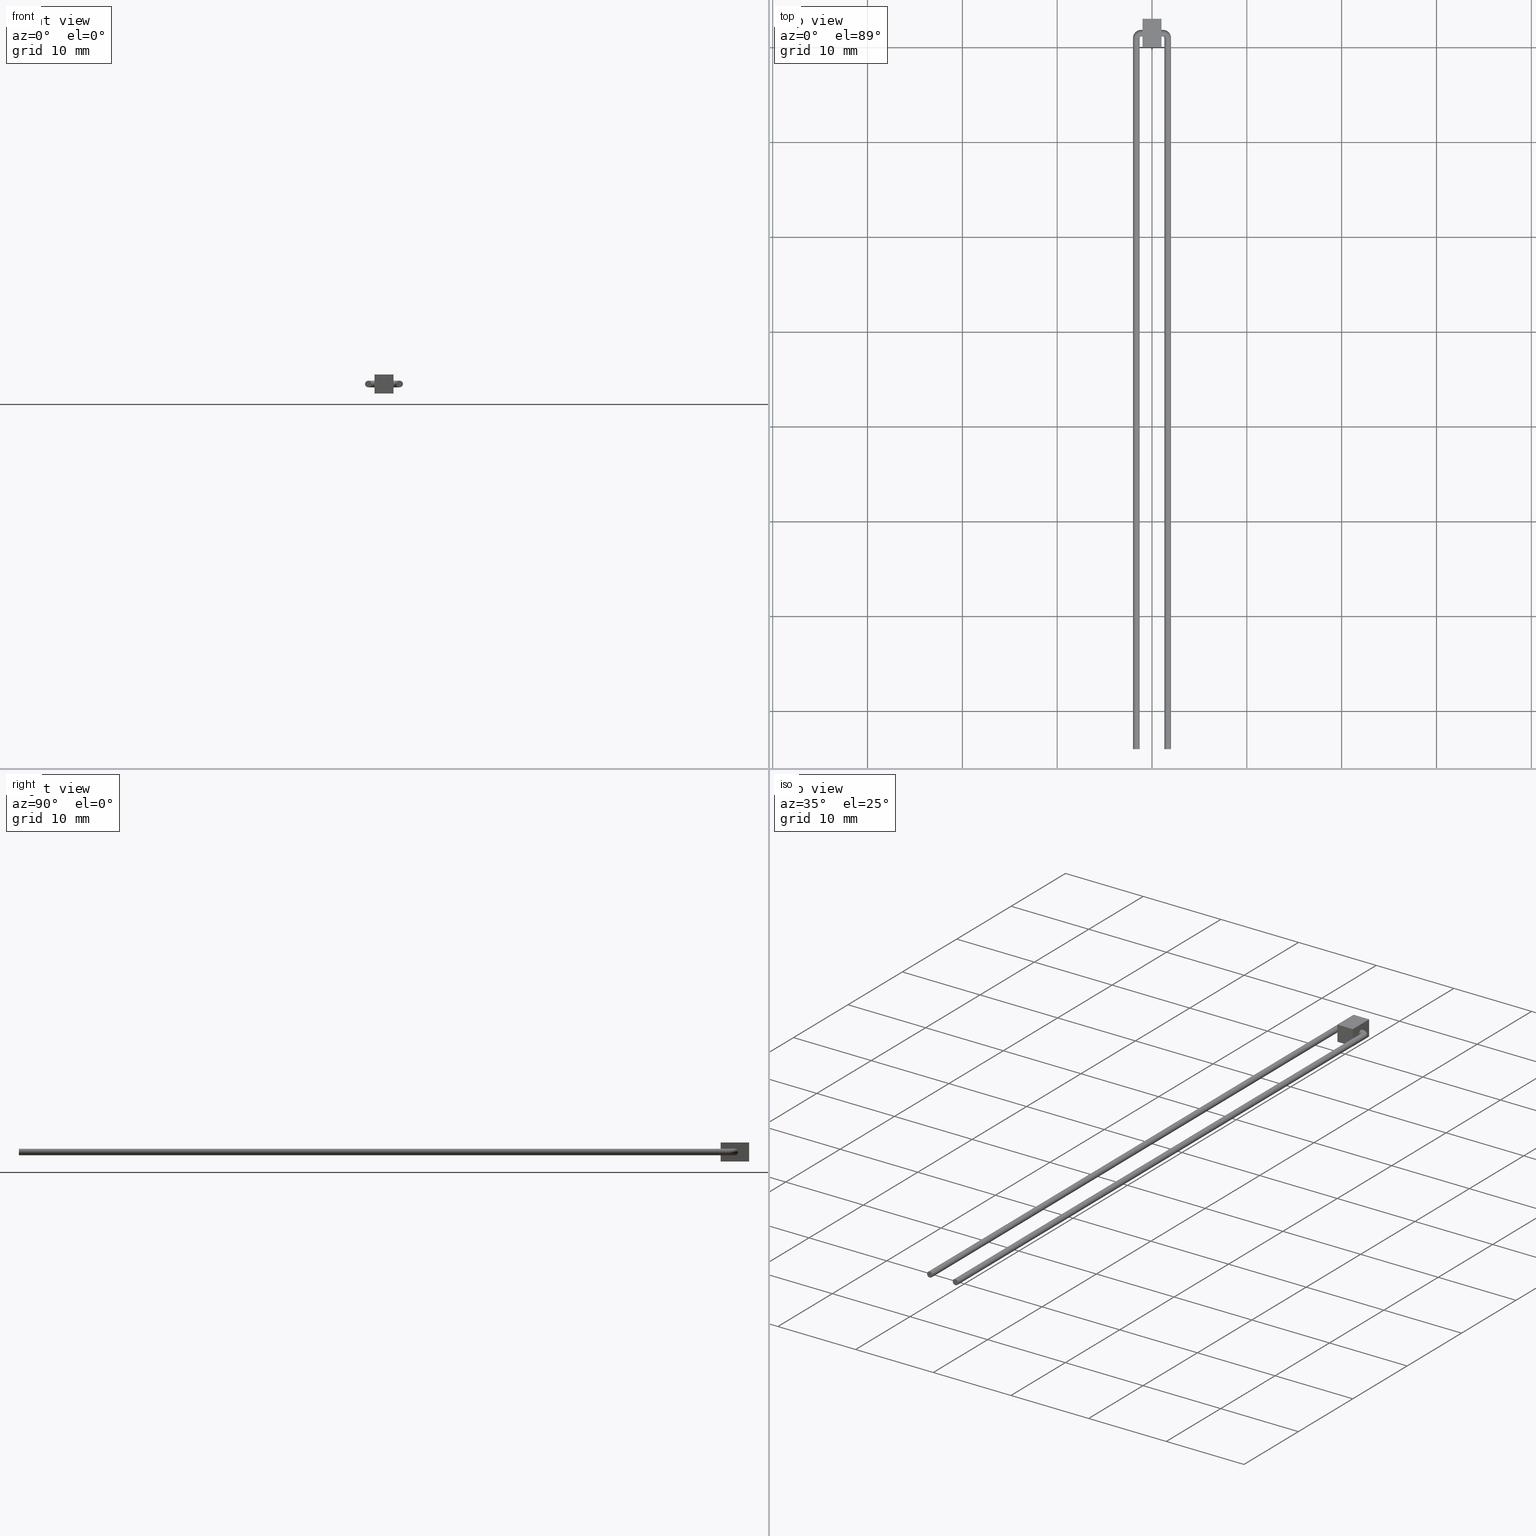
[diagram: canonical four-view strip — front | top / right | iso, engineering-drawing reading convention]
A machine part, canonical four-view strip (front | top / right | iso — engineering-drawing reading convention). The complete STEP part file that produces these views, byte-faithful:
ISO-10303-21;
HEADER;
FILE_DESCRIPTION (( 'STEP AP214' ),
    '1' );
FILE_NAME ('CTN013621.STEP',
    '2019-02-28T02:14:54',
    ( '' ),
    ( '' ),
    'SwSTEP 2.0',
    'SolidWorks 2018',
    '' );
FILE_SCHEMA (( 'AUTOMOTIVE_DESIGN' ));
ENDSEC;

DATA;
#1 = FACE_OUTER_BOUND ( 'NONE', #342, .T. ) ;
#2 = FACE_OUTER_BOUND ( 'NONE', #727, .T. ) ;
#3 = ADVANCED_FACE ( 'NONE', ( #732 ), #26, .T. ) ;
#4 = FILL_AREA_STYLE_COLOUR ( '', #175 ) ;
#5 = EDGE_CURVE ( 'NONE', #160, #559, #282, .T. ) ;
#6 = CARTESIAN_POINT ( 'NONE',  ( -1.000000000000000444, 3.000000000000000000, 0.9999999999999997780 ) ) ;
#7 = PRESENTATION_STYLE_ASSIGNMENT (( #409 ) ) ;
#8 =( GEOMETRIC_REPRESENTATION_CONTEXT ( 3 ) GLOBAL_UNCERTAINTY_ASSIGNED_CONTEXT ( ( #125 ) ) GLOBAL_UNIT_ASSIGNED_CONTEXT ( ( #782, #242, #49 ) ) REPRESENTATION_CONTEXT ( 'NONE', 'WORKASPACE' ) );
#9 = PLANE ( 'NONE',  #720 ) ;
#10 = COLOUR_RGB ( '',1.000000000000000000, 0.0000000000000000000, 0.0000000000000000000 ) ;
#11 = ORIENTED_EDGE ( 'NONE', *, *, #5, .F. ) ;
#12 = FILL_AREA_STYLE ('',( #621 ) ) ;
#13 = CIRCLE ( 'NONE', #355, 0.3499999999999999778 ) ;
#14 = ORIENTED_EDGE ( 'NONE', *, *, #846, .T. ) ;
#15 = FILL_AREA_STYLE ('',( #138 ) ) ;
#16 =( LENGTH_UNIT ( ) NAMED_UNIT ( * ) SI_UNIT ( .MILLI., .METRE. ) );
#17 = LINE ( 'NONE', #620, #209 ) ;
#18 = FILL_AREA_STYLE_COLOUR ( '', #623 ) ;
#19 = UNCERTAINTY_MEASURE_WITH_UNIT (LENGTH_MEASURE( 1.000000000000000082E-05 ), #352, 'distance_accuracy_value', 'NONE');
#20 = PRESENTATION_LAYER_ASSIGNMENT (  '', '', ( #962 ) ) ;
#21 = CARTESIAN_POINT ( 'NONE',  ( -1.000000000000000444, 3.000000000000000000, -1.000000000000000222 ) ) ;
#22 =( LENGTH_UNIT ( ) NAMED_UNIT ( * ) SI_UNIT ( .MILLI., .METRE. ) );
#23 = LINE ( 'NONE', #487, #93 ) ;
#24 =( GEOMETRIC_REPRESENTATION_CONTEXT ( 3 ) GLOBAL_UNCERTAINTY_ASSIGNED_CONTEXT ( ( #56 ) ) GLOBAL_UNIT_ASSIGNED_CONTEXT ( ( #16, #530, #80 ) ) REPRESENTATION_CONTEXT ( 'NONE', 'WORKASPACE' ) );
#25 =( NAMED_UNIT ( * ) PLANE_ANGLE_UNIT ( ) SI_UNIT ( $, .RADIAN. ) );
#26 = CYLINDRICAL_SURFACE ( 'NONE', #860, 0.3499999999999999778 ) ;
#27 = AXIS2_PLACEMENT_3D ( 'NONE', #285, #608, #435 ) ;
#28 = CARTESIAN_POINT ( 'NONE',  ( 0.9999999999999995559, 3.000000000000000000, 0.9999999999999997780 ) ) ;
#29 = SURFACE_STYLE_FILL_AREA ( #433 ) ;
#30 = DIRECTION ( 'NONE',  ( 0.0000000000000000000, 0.0000000000000000000, 1.000000000000000000 ) ) ;
#31 = DIRECTION ( 'NONE',  ( -1.243218491116711833E-16, -1.000000000000000000, 0.0000000000000000000 ) ) ;
#32 = ORIENTED_EDGE ( 'NONE', *, *, #187, .T. ) ;
#33 = CARTESIAN_POINT ( 'NONE',  ( 1.152776169258573180, 1.500000000000000000, -2.168404344971008868E-16 ) ) ;
#34 = EDGE_CURVE ( 'NONE', #518, #160, #652, .T. ) ;
#35 = CARTESIAN_POINT ( 'NONE',  ( -1.652776169258563854, -74.00000000000000000, -2.168404344971008868E-16 ) ) ;
#36 = DIRECTION ( 'NONE',  ( -1.000000000000000000, 0.0000000000000000000, 0.0000000000000000000 ) ) ;
#37 = PRODUCT_CONTEXT ( 'NONE', #311, 'mechanical' ) ;
#38 = FILL_AREA_STYLE ('',( #331 ) ) ;
#39 = AXIS2_PLACEMENT_3D ( 'NONE', #862, #260, #722 ) ;
#40 = DIRECTION ( 'NONE',  ( -1.000000000000000000, 0.0000000000000000000, 0.0000000000000000000 ) ) ;
#41 =( NAMED_UNIT ( * ) SI_UNIT ( $, .STERADIAN. ) SOLID_ANGLE_UNIT ( ) );
#42 = MECHANICAL_DESIGN_GEOMETRIC_PRESENTATION_REPRESENTATION (  '', ( #514 ), #995 ) ;
#43 = CARTESIAN_POINT ( 'NONE',  ( 0.9999999999999995559, 0.0000000000000000000, 0.9999999999999997780 ) ) ;
#44 = ORIENTED_EDGE ( 'NONE', *, *, #376, .T. ) ;
#45 = EDGE_CURVE ( 'NONE', #110, #604, #97, .T. ) ;
#46 = EDGE_LOOP ( 'NONE', ( #619, #347, #98, #198 ) ) ;
#47 =( NAMED_UNIT ( * ) PLANE_ANGLE_UNIT ( ) SI_UNIT ( $, .RADIAN. ) );
#48 = CARTESIAN_POINT ( 'NONE',  ( -1.000000000000000444, 0.0000000000000000000, 0.9999999999999997780 ) ) ;
#49 =( NAMED_UNIT ( * ) SI_UNIT ( $, .STERADIAN. ) SOLID_ANGLE_UNIT ( ) );
#50 = CIRCLE ( 'NONE', #27, 0.3499999999999999778 ) ;
#51 = EDGE_CURVE ( 'NONE', #809, #390, #292, .T. ) ;
#52 = CARTESIAN_POINT ( 'NONE',  ( 1.000000000000000444, 1.500000000000000000, -2.168404344971008868E-16 ) ) ;
#53 =( GEOMETRIC_REPRESENTATION_CONTEXT ( 3 ) GLOBAL_UNCERTAINTY_ASSIGNED_CONTEXT ( ( #226 ) ) GLOBAL_UNIT_ASSIGNED_CONTEXT ( ( #22, #398, #244 ) ) REPRESENTATION_CONTEXT ( 'NONE', 'WORKASPACE' ) );
#54 = SURFACE_SIDE_STYLE ('',( #87 ) ) ;
#55 = SURFACE_SIDE_STYLE ('',( #264 ) ) ;
#56 = UNCERTAINTY_MEASURE_WITH_UNIT (LENGTH_MEASURE( 1.000000000000000082E-05 ), #16, 'distance_accuracy_value', 'NONE');
#57 = DIRECTION ( 'NONE',  ( 1.000000000000000000, 0.0000000000000000000, 0.0000000000000000000 ) ) ;
#58 = DIRECTION ( 'NONE',  ( 0.0000000000000000000, 0.0000000000000000000, 1.000000000000000000 ) ) ;
#59 = FILL_AREA_STYLE_COLOUR ( '', #774 ) ;
#60 = COLOUR_RGB ( '',0.0000000000000000000, 0.0000000000000000000, 0.0000000000000000000 ) ;
#61 = PLANE ( 'NONE',  #752 ) ;
#62 = EDGE_CURVE ( 'NONE', #104, #390, #538, .T. ) ;
#63 = ORIENTED_EDGE ( 'NONE', *, *, #987, .T. ) ;
#64 = SURFACE_SIDE_STYLE ('',( #73 ) ) ;
#65 = DIRECTION ( 'NONE',  ( 1.000000000000000000, 0.0000000000000000000, 0.0000000000000000000 ) ) ;
#66 = PRESENTATION_STYLE_ASSIGNMENT (( #439 ) ) ;
#67 =( GEOMETRIC_REPRESENTATION_CONTEXT ( 3 ) GLOBAL_UNCERTAINTY_ASSIGNED_CONTEXT ( ( #396 ) ) GLOBAL_UNIT_ASSIGNED_CONTEXT ( ( #568, #119, #271 ) ) REPRESENTATION_CONTEXT ( 'NONE', 'WORKASPACE' ) );
#68 = ORIENTED_EDGE ( 'NONE', *, *, #594, .T. ) ;
#69 = PRESENTATION_STYLE_ASSIGNMENT (( #973 ) ) ;
#70 = DIRECTION ( 'NONE',  ( 1.000000000000000000, 0.0000000000000000000, 0.0000000000000000000 ) ) ;
#71 = CARTESIAN_POINT ( 'NONE',  ( -1.000000000000000444, 1.500000000000000000, -0.3500000000000001998 ) ) ;
#72 = SURFACE_STYLE_FILL_AREA ( #481 ) ;
#73 = SURFACE_STYLE_FILL_AREA ( #356 ) ;
#74 = ORIENTED_EDGE ( 'NONE', *, *, #268, .T. ) ;
#75 = DIRECTION ( 'NONE',  ( -0.0000000000000000000, -1.000000000000000000, -0.0000000000000000000 ) ) ;
#76 = DIRECTION ( 'NONE',  ( 0.0000000000000000000, 0.0000000000000000000, -1.000000000000000000 ) ) ;
#77 = CIRCLE ( 'NONE', #176, 0.3499999999999999778 ) ;
#78 = AXIS2_PLACEMENT_3D ( 'NONE', #979, #985, #903 ) ;
#79 =( NAMED_UNIT ( * ) PLANE_ANGLE_UNIT ( ) SI_UNIT ( $, .RADIAN. ) );
#80 =( NAMED_UNIT ( * ) SI_UNIT ( $, .STERADIAN. ) SOLID_ANGLE_UNIT ( ) );
#81 = EDGE_LOOP ( 'NONE', ( #383, #173 ) ) ;
#82 = UNCERTAINTY_MEASURE_WITH_UNIT (LENGTH_MEASURE( 1.000000000000000082E-05 ), #269, 'distance_accuracy_value', 'NONE');
#83 = STYLED_ITEM ( 'NONE', ( #461 ), #828 ) ;
#84 = FACE_OUTER_BOUND ( 'NONE', #483, .T. ) ;
#85 = CIRCLE ( 'NONE', #660, 0.5000000000000002220 ) ;
#86 = MECHANICAL_DESIGN_GEOMETRIC_PRESENTATION_REPRESENTATION (  '', ( #580 ), #421 ) ;
#87 = SURFACE_STYLE_FILL_AREA ( #351 ) ;
#88 = CARTESIAN_POINT ( 'NONE',  ( 0.04999999999999980849, 1.500545884122866713, -1.000000000000000222 ) ) ;
#89 = TOROIDAL_SURFACE ( 'NONE', #288, 0.5000000000000000000, 0.3499999999999999778 ) ;
#90 = AXIS2_PLACEMENT_3D ( 'NONE', #936, #482, #328 ) ;
#91 = DIRECTION ( 'NONE',  ( 0.0000000000000000000, -1.000000000000000000, 0.0000000000000000000 ) ) ;
#92 = DIRECTION ( 'NONE',  ( 1.000000000000000000, 0.0000000000000000000, 0.0000000000000000000 ) ) ;
#93 = VECTOR ( 'NONE', #190, 1000.000000000000000 ) ;
#94 = EDGE_LOOP ( 'NONE', ( #146, #249, #44, #719 ) ) ;
#95 = FILL_AREA_STYLE_COLOUR ( '', #555 ) ;
#96 = LINE ( 'NONE', #348, #692 ) ;
#97 = CIRCLE ( 'NONE', #946, 0.3499999999999999778 ) ;
#98 = ORIENTED_EDGE ( 'NONE', *, *, #135, .T. ) ;
#99 = CARTESIAN_POINT ( 'NONE',  ( -1.652776169258573180, 1.000000000000000222, -2.168404344971008868E-16 ) ) ;
#100 = CARTESIAN_POINT ( 'NONE',  ( 1.652776169258563854, -74.00000000000000000, -2.168404344971008868E-16 ) ) ;
#101 = ADVANCED_FACE ( 'NONE', ( #163 ), #452, .T. ) ;
#102 = DIRECTION ( 'NONE',  ( 0.0000000000000000000, 0.0000000000000000000, 1.000000000000000000 ) ) ;
#103 = DIRECTION ( 'NONE',  ( 0.0000000000000000000, 0.0000000000000000000, 1.000000000000000000 ) ) ;
#104 = VERTEX_POINT ( 'NONE', #203 ) ;
#105 = DIRECTION ( 'NONE',  ( 1.000000000000000000, 0.0000000000000000000, 0.0000000000000000000 ) ) ;
#106 = EDGE_CURVE ( 'NONE', #344, #823, #533, .T. ) ;
#107 = CARTESIAN_POINT ( 'NONE',  ( -1.152776169258573180, 1.500000000000000000, -2.168404344971008868E-16 ) ) ;
#108 = PRESENTATION_STYLE_ASSIGNMENT (( #964 ) ) ;
#109 = ORIENTED_EDGE ( 'NONE', *, *, #386, .F. ) ;
#110 = VERTEX_POINT ( 'NONE', #653 ) ;
#111 = DIRECTION ( 'NONE',  ( 1.000000000000000000, 0.0000000000000000000, 0.0000000000000000000 ) ) ;
#112 = FILL_AREA_STYLE_COLOUR ( '', #10 ) ;
#113 = FACE_OUTER_BOUND ( 'NONE', #222, .T. ) ;
#114 = CARTESIAN_POINT ( 'NONE',  ( 1.000000000000000444, 1.500000000000000000, -0.3500000000000001998 ) ) ;
#115 = VECTOR ( 'NONE', #92, 1000.000000000000000 ) ;
#116 = AXIS2_PLACEMENT_3D ( 'NONE', #276, #859, #826 ) ;
#117 = UNCERTAINTY_MEASURE_WITH_UNIT (LENGTH_MEASURE( 1.000000000000000082E-05 ), #650, 'distance_accuracy_value', 'NONE');
#118 = VECTOR ( 'NONE', #642, 1000.000000000000000 ) ;
#119 =( NAMED_UNIT ( * ) PLANE_ANGLE_UNIT ( ) SI_UNIT ( $, .RADIAN. ) );
#120 = AXIS2_PLACEMENT_3D ( 'NONE', #724, #262, #822 ) ;
#121 = CARTESIAN_POINT ( 'NONE',  ( -1.302776169258573091, 1.000000000000000222, -2.168404344971008868E-16 ) ) ;
#122 =( NAMED_UNIT ( * ) SI_UNIT ( $, .STERADIAN. ) SOLID_ANGLE_UNIT ( ) );
#123 = ORIENTED_EDGE ( 'NONE', *, *, #634, .F. ) ;
#124 = CARTESIAN_POINT ( 'NONE',  ( -0.4500000000000003997, 1.500545884122866713, -0.9900000000000002132 ) ) ;
#125 = UNCERTAINTY_MEASURE_WITH_UNIT (LENGTH_MEASURE( 1.000000000000000082E-05 ), #782, 'distance_accuracy_value', 'NONE');
#126 = AXIS2_PLACEMENT_3D ( 'NONE', #694, #529, #313 ) ;
#127 = DIRECTION ( 'NONE',  ( 0.0000000000000000000, 0.0000000000000000000, 1.000000000000000000 ) ) ;
#128 = SHAPE_DEFINITION_REPRESENTATION ( #738, #689 ) ;
#129 = ORIENTED_EDGE ( 'NONE', *, *, #306, .F. ) ;
#130 = VECTOR ( 'NONE', #415, 1000.000000000000000 ) ;
#131 = ORIENTED_EDGE ( 'NONE', *, *, #205, .T. ) ;
#132 = FACE_OUTER_BOUND ( 'NONE', #749, .T. ) ;
#133 =( NAMED_UNIT ( * ) PLANE_ANGLE_UNIT ( ) SI_UNIT ( $, .RADIAN. ) );
#134 = CARTESIAN_POINT ( 'NONE',  ( 0.9999999999999995559, 3.000000000000000000, 0.9999999999999997780 ) ) ;
#135 = EDGE_CURVE ( 'NONE', #823, #554, #992, .T. ) ;
#136 = DIRECTION ( 'NONE',  ( 0.0000000000000000000, 0.0000000000000000000, -1.000000000000000000 ) ) ;
#137 = CARTESIAN_POINT ( 'NONE',  ( 1.000000000000000444, 1.500000000000000000, -2.168404344971008868E-16 ) ) ;
#138 = FILL_AREA_STYLE_COLOUR ( '', #503 ) ;
#139 = AXIS2_PLACEMENT_3D ( 'NONE', #885, #967, #423 ) ;
#140 = ORIENTED_EDGE ( 'NONE', *, *, #268, .F. ) ;
#141 = DIRECTION ( 'NONE',  ( 0.0000000000000000000, -1.000000000000000000, 0.0000000000000000000 ) ) ;
#142 = AXIS2_PLACEMENT_3D ( 'NONE', #659, #211, #753 ) ;
#143 = FACE_OUTER_BOUND ( 'NONE', #941, .T. ) ;
#144 = DIRECTION ( 'NONE',  ( -1.000000000000000000, 0.0000000000000000000, 0.0000000000000000000 ) ) ;
#145 = ORIENTED_EDGE ( 'NONE', *, *, #273, .T. ) ;
#146 = ORIENTED_EDGE ( 'NONE', *, *, #578, .F. ) ;
#147 =( LENGTH_UNIT ( ) NAMED_UNIT ( * ) SI_UNIT ( .MILLI., .METRE. ) );
#148 = ADVANCED_FACE ( 'NONE', ( #422 ), #657, .T. ) ;
#149 = TOROIDAL_SURFACE ( 'NONE', #275, 0.5000000000000000000, 0.3499999999999999778 ) ;
#150 = UNCERTAINTY_MEASURE_WITH_UNIT (LENGTH_MEASURE( 1.000000000000000082E-05 ), #712, 'distance_accuracy_value', 'NONE');
#151 = COLOUR_RGB ( '',1.000000000000000000, 0.0000000000000000000, 0.0000000000000000000 ) ;
#152 =( GEOMETRIC_REPRESENTATION_CONTEXT ( 3 ) GLOBAL_UNCERTAINTY_ASSIGNED_CONTEXT ( ( #685 ) ) GLOBAL_UNIT_ASSIGNED_CONTEXT ( ( #392, #317, #41 ) ) REPRESENTATION_CONTEXT ( 'NONE', 'WORKASPACE' ) );
#153 = PRESENTATION_LAYER_ASSIGNMENT (  '', '', ( #514 ) ) ;
#154 = CARTESIAN_POINT ( 'NONE',  ( -1.000000000000000444, 3.000000000000000000, 0.9999999999999997780 ) ) ;
#155 =( NAMED_UNIT ( * ) SI_UNIT ( $, .STERADIAN. ) SOLID_ANGLE_UNIT ( ) );
#156 = SURFACE_STYLE_FILL_AREA ( #385 ) ;
#157 = ORIENTED_EDGE ( 'NONE', *, *, #949, .T. ) ;
#158 = FACE_OUTER_BOUND ( 'NONE', #391, .T. ) ;
#159 = EDGE_CURVE ( 'NONE', #710, #473, #666, .T. ) ;
#160 = VERTEX_POINT ( 'NONE', #48 ) ;
#161 = SURFACE_SIDE_STYLE ('',( #397 ) ) ;
#162 = DIRECTION ( 'NONE',  ( 0.0000000000000000000, 0.0000000000000000000, -1.000000000000000000 ) ) ;
#163 = FACE_OUTER_BOUND ( 'NONE', #334, .T. ) ;
#164 = LINE ( 'NONE', #114, #115 ) ;
#165 = CIRCLE ( 'NONE', #142, 0.3499999999999999778 ) ;
#166 =( NAMED_UNIT ( * ) PLANE_ANGLE_UNIT ( ) SI_UNIT ( $, .RADIAN. ) );
#167 = PRODUCT_DEFINITION_CONTEXT ( 'detailed design', #480, 'design' ) ;
#168 = STYLED_ITEM ( 'NONE', ( #476 ), #582 ) ;
#169 = FILL_AREA_STYLE_COLOUR ( '', #60 ) ;
#170 = DIRECTION ( 'NONE',  ( -0.0000000000000000000, -0.0000000000000000000, -1.000000000000000000 ) ) ;
#171 = SURFACE_STYLE_USAGE ( .BOTH. , #464 ) ;
#172 = ORIENTED_EDGE ( 'NONE', *, *, #436, .F. ) ;
#173 = ORIENTED_EDGE ( 'NONE', *, *, #298, .F. ) ;
#174 = CARTESIAN_POINT ( 'NONE',  ( 0.04999999999999980849, 1.500545884122866713, -0.9900000000000002132 ) ) ;
#175 = COLOUR_RGB ( '',0.0000000000000000000, 0.0000000000000000000, 0.0000000000000000000 ) ;
#176 = AXIS2_PLACEMENT_3D ( 'NONE', #225, #230, #920 ) ;
#177 = DIRECTION ( 'NONE',  ( -0.0000000000000000000, -0.0000000000000000000, 1.000000000000000000 ) ) ;
#178 = DIRECTION ( 'NONE',  ( -1.000000000000000000, 0.0000000000000000000, -0.0000000000000000000 ) ) ;
#179 = CARTESIAN_POINT ( 'NONE',  ( 1.152776169258573180, 1.500000000000000000, -2.168404344971008868E-16 ) ) ;
#180 =( NAMED_UNIT ( * ) SI_UNIT ( $, .STERADIAN. ) SOLID_ANGLE_UNIT ( ) );
#181 = CARTESIAN_POINT ( 'NONE',  ( -2.002776169258573269, 1.000000000000000000, -1.739777965269429292E-16 ) ) ;
#182 = ORIENTED_EDGE ( 'NONE', *, *, #485, .T. ) ;
#183 =( NAMED_UNIT ( * ) SI_UNIT ( $, .STERADIAN. ) SOLID_ANGLE_UNIT ( ) );
#184 = DIRECTION ( 'NONE',  ( -1.000000000000000000, 0.0000000000000000000, 0.0000000000000000000 ) ) ;
#185 = ORIENTED_EDGE ( 'NONE', *, *, #223, .F. ) ;
#186 = CIRCLE ( 'NONE', #890, 0.8500000000000000888 ) ;
#187 = EDGE_CURVE ( 'NONE', #604, #633, #164, .T. ) ;
#188 = CARTESIAN_POINT ( 'NONE',  ( 2.002776169258573269, 1.000000000000000000, -2.168404344971008868E-16 ) ) ;
#189 = PRESENTATION_STYLE_ASSIGNMENT (( #420 ) ) ;
#190 = DIRECTION ( 'NONE',  ( 1.000000000000000000, 0.0000000000000000000, 0.0000000000000000000 ) ) ;
#191 = DIRECTION ( 'NONE',  ( 0.0000000000000000000, 0.0000000000000000000, 1.000000000000000000 ) ) ;
#192 = CIRCLE ( 'NONE', #777, 0.5000000000000002220 ) ;
#193 = DIRECTION ( 'NONE',  ( 0.0000000000000000000, 0.0000000000000000000, 1.000000000000000000 ) ) ;
#194 = AXIS2_PLACEMENT_3D ( 'NONE', #124, #849, #305 ) ;
#195 = ORIENTED_EDGE ( 'NONE', *, *, #640, .T. ) ;
#196 = DIRECTION ( 'NONE',  ( -1.000000000000000000, 0.0000000000000000000, 0.0000000000000000000 ) ) ;
#197 =( NAMED_UNIT ( * ) PLANE_ANGLE_UNIT ( ) SI_UNIT ( $, .RADIAN. ) );
#198 = ORIENTED_EDGE ( 'NONE', *, *, #987, .F. ) ;
#199 = LINE ( 'NONE', #43, #499 ) ;
#200 = ORIENTED_EDGE ( 'NONE', *, *, #412, .T. ) ;
#201 =( LENGTH_UNIT ( ) NAMED_UNIT ( * ) SI_UNIT ( .MILLI., .METRE. ) );
#202 = CIRCLE ( 'NONE', #466, 0.3499999999999999778 ) ;
#203 = CARTESIAN_POINT ( 'NONE',  ( 1.152776169258573180, 1.850000000000000089, -2.168404344971008868E-16 ) ) ;
#204 = VECTOR ( 'NONE', #237, 1000.000000000000000 ) ;
#205 = EDGE_CURVE ( 'NONE', #532, #930, #958, .T. ) ;
#206 = DIRECTION ( 'NONE',  ( -1.000000000000000000, 0.0000000000000000000, 0.0000000000000000000 ) ) ;
#207 = PRESENTATION_LAYER_ASSIGNMENT (  '', '', ( #562 ) ) ;
#208 = DIRECTION ( 'NONE',  ( 0.0000000000000000000, 0.0000000000000000000, 1.000000000000000000 ) ) ;
#209 = VECTOR ( 'NONE', #460, 1000.000000000000000 ) ;
#210 = CARTESIAN_POINT ( 'NONE',  ( 0.0000000000000000000, 3.000000000000000000, 0.0000000000000000000 ) ) ;
#211 = DIRECTION ( 'NONE',  ( 0.0000000000000000000, -1.000000000000000000, 0.0000000000000000000 ) ) ;
#212 =( NAMED_UNIT ( * ) SI_UNIT ( $, .STERADIAN. ) SOLID_ANGLE_UNIT ( ) );
#213 = DIRECTION ( 'NONE',  ( 0.0000000000000000000, -1.000000000000000000, 0.0000000000000000000 ) ) ;
#214 = VERTEX_POINT ( 'NONE', #471 ) ;
#215 =( NAMED_UNIT ( * ) SI_UNIT ( $, .STERADIAN. ) SOLID_ANGLE_UNIT ( ) );
#216 = MECHANICAL_DESIGN_GEOMETRIC_PRESENTATION_REPRESENTATION (  '', ( #454 ), #600 ) ;
#217 = TOROIDAL_SURFACE ( 'NONE', #126, 0.5000000000000000000, 0.3499999999999999778 ) ;
#218 = ORIENTED_EDGE ( 'NONE', *, *, #888, .T. ) ;
#219 = ORIENTED_EDGE ( 'NONE', *, *, #329, .F. ) ;
#220 = SURFACE_STYLE_USAGE ( .BOTH. , #161 ) ;
#221 = CARTESIAN_POINT ( 'NONE',  ( -1.152776169258573180, 1.000000000000000000, -2.168404344971008868E-16 ) ) ;
#222 = EDGE_LOOP ( 'NONE', ( #109, #759, #32, #231, #123 ) ) ;
#223 = EDGE_CURVE ( 'NONE', #691, #160, #365, .T. ) ;
#224 = MECHANICAL_DESIGN_GEOMETRIC_PRESENTATION_REPRESENTATION (  '', ( #962 ), #53 ) ;
#225 = CARTESIAN_POINT ( 'NONE',  ( -1.000000000000000444, 1.500000000000000000, -2.168404344971008868E-16 ) ) ;
#226 = UNCERTAINTY_MEASURE_WITH_UNIT (LENGTH_MEASURE( 1.000000000000000082E-05 ), #22, 'distance_accuracy_value', 'NONE');
#227 = EDGE_CURVE ( 'NONE', #679, #497, #236, .T. ) ;
#228 = STYLED_ITEM ( 'NONE', ( #573 ), #772 ) ;
#229 = FILL_AREA_STYLE_COLOUR ( '', #360 ) ;
#230 = DIRECTION ( 'NONE',  ( -1.000000000000000000, 0.0000000000000000000, 0.0000000000000000000 ) ) ;
#231 = ORIENTED_EDGE ( 'NONE', *, *, #265, .F. ) ;
#232 =( LENGTH_UNIT ( ) NAMED_UNIT ( * ) SI_UNIT ( .MILLI., .METRE. ) );
#233 = PRESENTATION_STYLE_ASSIGNMENT (( #697 ) ) ;
#234 = ORIENTED_EDGE ( 'NONE', *, *, #578, .T. ) ;
#235 = PLANE ( 'NONE',  #357 ) ;
#236 = CIRCLE ( 'NONE', #39, 0.3499999999999999778 ) ;
#237 = DIRECTION ( 'NONE',  ( 1.243218491116711833E-16, -1.000000000000000000, 0.0000000000000000000 ) ) ;
#238 = SURFACE_SIDE_STYLE ('',( #434 ) ) ;
#239 = ORIENTED_EDGE ( 'NONE', *, *, #545, .T. ) ;
#240 =( GEOMETRIC_REPRESENTATION_CONTEXT ( 3 ) GLOBAL_UNCERTAINTY_ASSIGNED_CONTEXT ( ( #401 ) ) GLOBAL_UNIT_ASSIGNED_CONTEXT ( ( #614, #389, #155 ) ) REPRESENTATION_CONTEXT ( 'NONE', 'WORKASPACE' ) );
#241 =( GEOMETRIC_REPRESENTATION_CONTEXT ( 3 ) GLOBAL_UNCERTAINTY_ASSIGNED_CONTEXT ( ( #294 ) ) GLOBAL_UNIT_ASSIGNED_CONTEXT ( ( #495, #47, #902 ) ) REPRESENTATION_CONTEXT ( 'NONE', 'WORKASPACE' ) );
#242 =( NAMED_UNIT ( * ) PLANE_ANGLE_UNIT ( ) SI_UNIT ( $, .RADIAN. ) );
#243 = EDGE_LOOP ( 'NONE', ( #983, #437 ) ) ;
#244 =( NAMED_UNIT ( * ) SI_UNIT ( $, .STERADIAN. ) SOLID_ANGLE_UNIT ( ) );
#245 = SURFACE_SIDE_STYLE ('',( #267 ) ) ;
#246 = MECHANICAL_DESIGN_GEOMETRIC_PRESENTATION_REPRESENTATION (  '', ( #562 ), #393 ) ;
#247 = CARTESIAN_POINT ( 'NONE',  ( -1.652776169258573180, 1.000000000000000000, -2.168404344971008868E-16 ) ) ;
#248 = VERTEX_POINT ( 'NONE', #945 ) ;
#249 = ORIENTED_EDGE ( 'NONE', *, *, #51, .T. ) ;
#250 = DIRECTION ( 'NONE',  ( -1.000000000000000000, 0.0000000000000000000, 0.0000000000000000000 ) ) ;
#251 = PRESENTATION_LAYER_ASSIGNMENT (  '', '', ( #939 ) ) ;
#252 =( NAMED_UNIT ( * ) SI_UNIT ( $, .STERADIAN. ) SOLID_ANGLE_UNIT ( ) );
#253 = ADVANCED_FACE ( 'NONE', ( #592 ), #519, .T. ) ;
#254 = CARTESIAN_POINT ( 'NONE',  ( -1.152776169258573180, 1.500000000000000000, -2.168404344971008868E-16 ) ) ;
#255 = MECHANICAL_DESIGN_GEOMETRIC_PRESENTATION_REPRESENTATION (  '', ( #410 ), #309 ) ;
#256 =( LENGTH_UNIT ( ) NAMED_UNIT ( * ) SI_UNIT ( .MILLI., .METRE. ) );
#257 = EDGE_CURVE ( 'NONE', #785, #559, #790, .T. ) ;
#258 = DIRECTION ( 'NONE',  ( 0.0000000000000000000, 0.0000000000000000000, -1.000000000000000000 ) ) ;
#259 = UNCERTAINTY_MEASURE_WITH_UNIT (LENGTH_MEASURE( 1.000000000000000082E-05 ), #665, 'distance_accuracy_value', 'NONE');
#260 = DIRECTION ( 'NONE',  ( -1.243218491116711833E-16, -1.000000000000000000, 0.0000000000000000000 ) ) ;
#261 = CARTESIAN_POINT ( 'NONE',  ( -1.000000000000000444, 0.0000000000000000000, 0.9999999999999997780 ) ) ;
#262 = DIRECTION ( 'NONE',  ( -0.0000000000000000000, -0.0000000000000000000, -1.000000000000000000 ) ) ;
#263 = EDGE_LOOP ( 'NONE', ( #406, #880, #324, #796 ) ) ;
#264 = SURFACE_STYLE_FILL_AREA ( #595 ) ;
#265 = EDGE_CURVE ( 'NONE', #501, #633, #775, .T. ) ;
#266 = DIRECTION ( 'NONE',  ( 0.0000000000000000000, 0.0000000000000000000, -1.000000000000000000 ) ) ;
#267 = SURFACE_STYLE_FILL_AREA ( #550 ) ;
#268 = EDGE_CURVE ( 'NONE', #854, #710, #607, .T. ) ;
#269 =( LENGTH_UNIT ( ) NAMED_UNIT ( * ) SI_UNIT ( .MILLI., .METRE. ) );
#270 = CARTESIAN_POINT ( 'NONE',  ( 0.0000000000000000000, 0.0000000000000000000, 0.0000000000000000000 ) ) ;
#271 =( NAMED_UNIT ( * ) SI_UNIT ( $, .STERADIAN. ) SOLID_ANGLE_UNIT ( ) );
#272 =( LENGTH_UNIT ( ) NAMED_UNIT ( * ) SI_UNIT ( .MILLI., .METRE. ) );
#273 = EDGE_CURVE ( 'NONE', #779, #532, #829, .T. ) ;
#274 = FILL_AREA_STYLE ('',( #4 ) ) ;
#275 = AXIS2_PLACEMENT_3D ( 'NONE', #711, #170, #250 ) ;
#276 = CARTESIAN_POINT ( 'NONE',  ( -1.000000000000000444, 1.500000000000000000, -2.168404344971008868E-16 ) ) ;
#277 = DIRECTION ( 'NONE',  ( 0.0000000000000000000, 0.0000000000000000000, 1.000000000000000000 ) ) ;
#278 = CIRCLE ( 'NONE', #336, 0.3499999999999999778 ) ;
#279 = ADVANCED_FACE ( 'NONE', ( #721 ), #89, .T. ) ;
#280 = VECTOR ( 'NONE', #75, 1000.000000000000000 ) ;
#281 = SURFACE_STYLE_FILL_AREA ( #627 ) ;
#282 = LINE ( 'NONE', #337, #872 ) ;
#283 = FILL_AREA_STYLE_COLOUR ( '', #870 ) ;
#284 = CARTESIAN_POINT ( 'NONE',  ( 1.152776169258573180, 1.500000000000000000, -2.168404344971008868E-16 ) ) ;
#285 = CARTESIAN_POINT ( 'NONE',  ( -1.000000000000000444, 1.500000000000000000, -2.168404344971008868E-16 ) ) ;
#286 = EDGE_CURVE ( 'NONE', #604, #110, #887, .T. ) ;
#287 = DIRECTION ( 'NONE',  ( 0.0000000000000000000, 0.0000000000000000000, -1.000000000000000000 ) ) ;
#288 = AXIS2_PLACEMENT_3D ( 'NONE', #353, #426, #105 ) ;
#289 = VECTOR ( 'NONE', #177, 1000.000000000000000 ) ;
#290 = DIRECTION ( 'NONE',  ( -1.243218491116711833E-16, -1.000000000000000000, 0.0000000000000000000 ) ) ;
#291 = VECTOR ( 'NONE', #517, 1000.000000000000000 ) ;
#292 = CIRCLE ( 'NONE', #139, 0.3499999999999999778 ) ;
#293 = MECHANICAL_DESIGN_GEOMETRIC_PRESENTATION_REPRESENTATION (  '', ( #494 ), #241 ) ;
#294 = UNCERTAINTY_MEASURE_WITH_UNIT (LENGTH_MEASURE( 1.000000000000000082E-05 ), #495, 'distance_accuracy_value', 'NONE');
#295 = PRESENTATION_STYLE_ASSIGNMENT (( #817 ) ) ;
#296 = CARTESIAN_POINT ( 'NONE',  ( 1.152776169258573180, 1.500000000000000000, -2.168404344971008868E-16 ) ) ;
#297 = EDGE_LOOP ( 'NONE', ( #462, #702 ) ) ;
#298 = EDGE_CURVE ( 'NONE', #473, #710, #192, .T. ) ;
#299 = DIRECTION ( 'NONE',  ( -1.243218491116711833E-16, -1.000000000000000000, 0.0000000000000000000 ) ) ;
#300 = STYLED_ITEM ( 'NONE', ( #295 ), #279 ) ;
#301 = COLOUR_RGB ( '',0.0000000000000000000, 0.0000000000000000000, 0.0000000000000000000 ) ;
#302 = ORIENTED_EDGE ( 'NONE', *, *, #624, .F. ) ;
#303 = VECTOR ( 'NONE', #425, 1000.000000000000000 ) ;
#304 = ORIENTED_EDGE ( 'NONE', *, *, #306, .T. ) ;
#305 = DIRECTION ( 'NONE',  ( -1.000000000000000000, 0.0000000000000000000, 0.0000000000000000000 ) ) ;
#306 = EDGE_CURVE ( 'NONE', #214, #746, #764, .T. ) ;
#307 = AXIS2_PLACEMENT_3D ( 'NONE', #326, #955, #876 ) ;
#308 = CARTESIAN_POINT ( 'NONE',  ( -1.000000000000000444, 3.000000000000000000, -1.000000000000000222 ) ) ;
#309 =( GEOMETRIC_REPRESENTATION_CONTEXT ( 3 ) GLOBAL_UNCERTAINTY_ASSIGNED_CONTEXT ( ( #610 ) ) GLOBAL_UNIT_ASSIGNED_CONTEXT ( ( #256, #728, #183 ) ) REPRESENTATION_CONTEXT ( 'NONE', 'WORKASPACE' ) );
#310 = VERTEX_POINT ( 'NONE', #656 ) ;
#311 = APPLICATION_CONTEXT ( 'automotive_design' ) ;
#312 = FACE_OUTER_BOUND ( 'NONE', #416, .T. ) ;
#313 = DIRECTION ( 'NONE',  ( 1.000000000000000000, 0.0000000000000000000, 0.0000000000000000000 ) ) ;
#314 = FILL_AREA_STYLE ('',( #853 ) ) ;
#315 = ORIENTED_EDGE ( 'NONE', *, *, #776, .F. ) ;
#316 = EDGE_LOOP ( 'NONE', ( #371, #185, #362, #915 ) ) ;
#317 =( NAMED_UNIT ( * ) PLANE_ANGLE_UNIT ( ) SI_UNIT ( $, .RADIAN. ) );
#318 = STYLED_ITEM ( 'NONE', ( #703 ), #478 ) ;
#319 = DIRECTION ( 'NONE',  ( 0.0000000000000000000, 0.0000000000000000000, 1.000000000000000000 ) ) ;
#320 = DIRECTION ( 'NONE',  ( 0.0000000000000000000, 0.0000000000000000000, 1.000000000000000000 ) ) ;
#321 = DIRECTION ( 'NONE',  ( -0.0000000000000000000, -1.000000000000000000, -0.0000000000000000000 ) ) ;
#322 = LINE ( 'NONE', #803, #130 ) ;
#323 = PRESENTATION_LAYER_ASSIGNMENT (  '', '', ( #318 ) ) ;
#324 = ORIENTED_EDGE ( 'NONE', *, *, #888, .F. ) ;
#325 = SURFACE_SIDE_STYLE ('',( #878 ) ) ;
#326 = CARTESIAN_POINT ( 'NONE',  ( -0.4500000000000003997, 1.500545884122866713, -1.000000000000000222 ) ) ;
#327 = CARTESIAN_POINT ( 'NONE',  ( 1.652776169258573180, 1.000000000000000222, -2.168404344971008868E-16 ) ) ;
#328 = DIRECTION ( 'NONE',  ( 0.0000000000000000000, 0.0000000000000000000, 1.000000000000000000 ) ) ;
#329 = EDGE_CURVE ( 'NONE', #633, #104, #827, .T. ) ;
#330 = CARTESIAN_POINT ( 'NONE',  ( -1.152776169258573180, 1.500000000000000000, -2.168404344971008868E-16 ) ) ;
#331 = FILL_AREA_STYLE_COLOUR ( '', #804 ) ;
#332 = ORIENTED_EDGE ( 'NONE', *, *, #286, .F. ) ;
#333 = PRESENTATION_LAYER_ASSIGNMENT (  '', '', ( #300 ) ) ;
#334 = EDGE_LOOP ( 'NONE', ( #591, #374, #917, #971, #919 ) ) ;
#335 =( LENGTH_UNIT ( ) NAMED_UNIT ( * ) SI_UNIT ( .MILLI., .METRE. ) );
#336 = AXIS2_PLACEMENT_3D ( 'NONE', #330, #807, #319 ) ;
#337 = CARTESIAN_POINT ( 'NONE',  ( -1.000000000000000444, 0.0000000000000000000, 0.9999999999999997780 ) ) ;
#338 = MECHANICAL_DESIGN_GEOMETRIC_PRESENTATION_REPRESENTATION (  '', ( #168 ), #511 ) ;
#339 = SURFACE_SIDE_STYLE ('',( #993 ) ) ;
#340 =( NAMED_UNIT ( * ) SI_UNIT ( $, .STERADIAN. ) SOLID_ANGLE_UNIT ( ) );
#341 = FILL_AREA_STYLE_COLOUR ( '', #645 ) ;
#342 = EDGE_LOOP ( 'NONE', ( #239, #750, #717, #218 ) ) ;
#343 = DIRECTION ( 'NONE',  ( 0.0000000000000000000, 0.0000000000000000000, -1.000000000000000000 ) ) ;
#344 = VERTEX_POINT ( 'NONE', #181 ) ;
#345 = DIRECTION ( 'NONE',  ( -1.000000000000000000, 0.0000000000000000000, 0.0000000000000000000 ) ) ;
#346 = SURFACE_SIDE_STYLE ('',( #515 ) ) ;
#347 = ORIENTED_EDGE ( 'NONE', *, *, #106, .T. ) ;
#348 = CARTESIAN_POINT ( 'NONE',  ( 1.302776169258573091, 1.000000000000000222, -1.739777965269435209E-16 ) ) ;
#349 = CARTESIAN_POINT ( 'NONE',  ( 1.000000000000000444, 1.500000000000000000, 0.3499999999999997558 ) ) ;
#350 = PRESENTATION_LAYER_ASSIGNMENT (  '', '', ( #228 ) ) ;
#351 = FILL_AREA_STYLE ('',( #576 ) ) ;
#352 =( LENGTH_UNIT ( ) NAMED_UNIT ( * ) SI_UNIT ( .MILLI., .METRE. ) );
#353 = CARTESIAN_POINT ( 'NONE',  ( -1.152776169258573180, 1.000000000000000000, -2.168404344971008868E-16 ) ) ;
#354 = FACE_OUTER_BOUND ( 'NONE', #549, .T. ) ;
#355 = AXIS2_PLACEMENT_3D ( 'NONE', #296, #65, #277 ) ;
#356 = FILL_AREA_STYLE ('',( #283 ) ) ;
#357 = AXIS2_PLACEMENT_3D ( 'NONE', #931, #162, #788 ) ;
#358 = ORIENTED_EDGE ( 'NONE', *, *, #527, .T. ) ;
#359 = CIRCLE ( 'NONE', #744, 0.5000000000000002220 ) ;
#360 = COLOUR_RGB ( '',0.9137254901960784048, 1.000000000000000000, 0.7490196078431372584 ) ;
#361 = VERTEX_POINT ( 'NONE', #938 ) ;
#362 = ORIENTED_EDGE ( 'NONE', *, *, #835, .F. ) ;
#363 =( NAMED_UNIT ( * ) PLANE_ANGLE_UNIT ( ) SI_UNIT ( $, .RADIAN. ) );
#364 = VERTEX_POINT ( 'NONE', #174 ) ;
#365 = LINE ( 'NONE', #802, #536 ) ;
#366 = LINE ( 'NONE', #349, #980 ) ;
#367 = ADVANCED_FACE ( 'NONE', ( #143 ), #844, .T. ) ;
#368 = CARTESIAN_POINT ( 'NONE',  ( 1.652776169258563854, -74.00000000000000000, -2.168404344971008868E-16 ) ) ;
#369 =( GEOMETRIC_REPRESENTATION_CONTEXT ( 3 ) GLOBAL_UNCERTAINTY_ASSIGNED_CONTEXT ( ( #537 ) ) GLOBAL_UNIT_ASSIGNED_CONTEXT ( ( #838, #447, #901 ) ) REPRESENTATION_CONTEXT ( 'NONE', 'WORKASPACE' ) );
#370 = ORIENTED_EDGE ( 'NONE', *, *, #634, .T. ) ;
#371 = ORIENTED_EDGE ( 'NONE', *, *, #34, .T. ) ;
#372 =( NAMED_UNIT ( * ) SI_UNIT ( $, .STERADIAN. ) SOLID_ANGLE_UNIT ( ) );
#373 = VECTOR ( 'NONE', #748, 1000.000000000000000 ) ;
#374 = ORIENTED_EDGE ( 'NONE', *, *, #62, .T. ) ;
#375 = VECTOR ( 'NONE', #671, 1000.000000000000000 ) ;
#376 = EDGE_CURVE ( 'NONE', #390, #679, #17, .T. ) ;
#377 = MECHANICAL_DESIGN_GEOMETRIC_PRESENTATION_REPRESENTATION (  '', ( #818 ), #684 ) ;
#378 =( NAMED_UNIT ( * ) SI_UNIT ( $, .STERADIAN. ) SOLID_ANGLE_UNIT ( ) );
#379 = CARTESIAN_POINT ( 'NONE',  ( 0.9999999999999995559, 3.000000000000000000, -1.000000000000000222 ) ) ;
#380 = PRESENTATION_STYLE_ASSIGNMENT (( #892 ) ) ;
#381 = ORIENTED_EDGE ( 'NONE', *, *, #34, .F. ) ;
#382 = SURFACE_STYLE_FILL_AREA ( #384 ) ;
#383 = ORIENTED_EDGE ( 'NONE', *, *, #159, .F. ) ;
#384 = FILL_AREA_STYLE ('',( #229 ) ) ;
#385 = FILL_AREA_STYLE ('',( #95 ) ) ;
#386 = EDGE_CURVE ( 'NONE', #110, #310, #366, .T. ) ;
#387 = DIRECTION ( 'NONE',  ( 1.243218491116711833E-16, -1.000000000000000000, 0.0000000000000000000 ) ) ;
#388 = PRESENTATION_LAYER_ASSIGNMENT (  '', '', ( #705 ) ) ;
#389 =( NAMED_UNIT ( * ) PLANE_ANGLE_UNIT ( ) SI_UNIT ( $, .RADIAN. ) );
#390 = VERTEX_POINT ( 'NONE', #188 ) ;
#391 = EDGE_LOOP ( 'NONE', ( #195, #622, #986, #696 ) ) ;
#392 =( LENGTH_UNIT ( ) NAMED_UNIT ( * ) SI_UNIT ( .MILLI., .METRE. ) );
#393 =( GEOMETRIC_REPRESENTATION_CONTEXT ( 3 ) GLOBAL_UNCERTAINTY_ASSIGNED_CONTEXT ( ( #117 ) ) GLOBAL_UNIT_ASSIGNED_CONTEXT ( ( #650, #197, #566 ) ) REPRESENTATION_CONTEXT ( 'NONE', 'WORKASPACE' ) );
#394 = CYLINDRICAL_SURFACE ( 'NONE', #837, 0.3500000000000000333 ) ;
#395 = ORIENTED_EDGE ( 'NONE', *, *, #187, .F. ) ;
#396 = UNCERTAINTY_MEASURE_WITH_UNIT (LENGTH_MEASURE( 1.000000000000000082E-05 ), #568, 'distance_accuracy_value', 'NONE');
#397 = SURFACE_STYLE_FILL_AREA ( #605 ) ;
#398 =( NAMED_UNIT ( * ) PLANE_ANGLE_UNIT ( ) SI_UNIT ( $, .RADIAN. ) );
#399 = LINE ( 'NONE', #912, #204 ) ;
#400 = DIRECTION ( 'NONE',  ( 1.000000000000000000, 0.0000000000000000000, 0.0000000000000000000 ) ) ;
#401 = UNCERTAINTY_MEASURE_WITH_UNIT (LENGTH_MEASURE( 1.000000000000000082E-05 ), #614, 'distance_accuracy_value', 'NONE');
#402 = STYLED_ITEM ( 'NONE', ( #757 ), #812 ) ;
#403 = SURFACE_STYLE_USAGE ( .BOTH. , #325 ) ;
#404 = SURFACE_SIDE_STYLE ('',( #954 ) ) ;
#405 = DIRECTION ( 'NONE',  ( 1.243218491116711833E-16, -1.000000000000000000, 0.0000000000000000000 ) ) ;
#406 = ORIENTED_EDGE ( 'NONE', *, *, #5, .T. ) ;
#407 = MECHANICAL_DESIGN_GEOMETRIC_PRESENTATION_REPRESENTATION (  '', ( #441 ), #8 ) ;
#408 = FILL_AREA_STYLE_COLOUR ( '', #301 ) ;
#409 = SURFACE_STYLE_USAGE ( .BOTH. , #831 ) ;
#410 = STYLED_ITEM ( 'NONE', ( #569 ), #689 ) ;
#411 = DIRECTION ( 'NONE',  ( -1.000000000000000000, -0.0000000000000000000, -0.0000000000000000000 ) ) ;
#412 = EDGE_CURVE ( 'NONE', #104, #310, #596, .T. ) ;
#413 = CARTESIAN_POINT ( 'NONE',  ( -1.152776169258573180, 1.500000000000000000, -2.168404344971008868E-16 ) ) ;
#414 = VECTOR ( 'NONE', #873, 1000.000000000000000 ) ;
#415 = DIRECTION ( 'NONE',  ( -0.0000000000000000000, -0.0000000000000000000, -1.000000000000000000 ) ) ;
#416 = EDGE_LOOP ( 'NONE', ( #646, #14, #833, #140 ) ) ;
#417 = DIRECTION ( 'NONE',  ( 1.243218491116711833E-16, -1.000000000000000000, 0.0000000000000000000 ) ) ;
#418 =( LENGTH_UNIT ( ) NAMED_UNIT ( * ) SI_UNIT ( .MILLI., .METRE. ) );
#419 = LINE ( 'NONE', #507, #280 ) ;
#420 = SURFACE_STYLE_USAGE ( .BOTH. , #339 ) ;
#421 =( GEOMETRIC_REPRESENTATION_CONTEXT ( 3 ) GLOBAL_UNCERTAINTY_ASSIGNED_CONTEXT ( ( #910 ) ) GLOBAL_UNIT_ASSIGNED_CONTEXT ( ( #579, #133, #215 ) ) REPRESENTATION_CONTEXT ( 'NONE', 'WORKASPACE' ) );
#422 = FACE_OUTER_BOUND ( 'NONE', #512, .T. ) ;
#423 = DIRECTION ( 'NONE',  ( 0.0000000000000000000, 0.0000000000000000000, 1.000000000000000000 ) ) ;
#424 = DIRECTION ( 'NONE',  ( 1.243218491116711833E-16, -1.000000000000000000, 0.0000000000000000000 ) ) ;
#425 = DIRECTION ( 'NONE',  ( 0.0000000000000000000, 0.0000000000000000000, -1.000000000000000000 ) ) ;
#426 = DIRECTION ( 'NONE',  ( 0.0000000000000000000, 0.0000000000000000000, 1.000000000000000000 ) ) ;
#427 = SURFACE_SIDE_STYLE ('',( #506 ) ) ;
#428 = FILL_AREA_STYLE_COLOUR ( '', #927 ) ;
#429 = CARTESIAN_POINT ( 'NONE',  ( 1.152776169258573180, 1.500000000000000000, -0.3500000000000001998 ) ) ;
#430 = SURFACE_STYLE_FILL_AREA ( #38 ) ;
#431 = PRESENTATION_LAYER_ASSIGNMENT (  '', '', ( #580 ) ) ;
#432 = CARTESIAN_POINT ( 'NONE',  ( 0.0000000000000000000, 0.0000000000000000000, 0.0000000000000000000 ) ) ;
#433 = FILL_AREA_STYLE ('',( #704 ) ) ;
#434 = SURFACE_STYLE_FILL_AREA ( #944 ) ;
#435 = DIRECTION ( 'NONE',  ( 0.0000000000000000000, 0.0000000000000000000, 1.000000000000000000 ) ) ;
#436 = EDGE_CURVE ( 'NONE', #390, #809, #165, .T. ) ;
#437 = ORIENTED_EDGE ( 'NONE', *, *, #479, .F. ) ;
#438 = SURFACE_SIDE_STYLE ('',( #430 ) ) ;
#439 = SURFACE_STYLE_USAGE ( .BOTH. , #55 ) ;
#440 = UNCERTAINTY_MEASURE_WITH_UNIT (LENGTH_MEASURE( 1.000000000000000082E-05 ), #201, 'distance_accuracy_value', 'NONE');
#441 = STYLED_ITEM ( 'NONE', ( #233 ), #791 ) ;
#442 = ORIENTED_EDGE ( 'NONE', *, *, #667, .T. ) ;
#443 = CARTESIAN_POINT ( 'NONE',  ( -0.4500000000000003997, 1.500545884122866713, -0.9900000000000002132 ) ) ;
#444 = PRESENTATION_LAYER_ASSIGNMENT (  '', '', ( #454 ) ) ;
#445 = AXIS2_PLACEMENT_3D ( 'NONE', #52, #575, #127 ) ;
#446 = FILL_AREA_STYLE_COLOUR ( '', #603 ) ;
#447 =( NAMED_UNIT ( * ) PLANE_ANGLE_UNIT ( ) SI_UNIT ( $, .RADIAN. ) );
#448 =( GEOMETRIC_REPRESENTATION_CONTEXT ( 3 ) GLOBAL_UNCERTAINTY_ASSIGNED_CONTEXT ( ( #440 ) ) GLOBAL_UNIT_ASSIGNED_CONTEXT ( ( #201, #166, #565 ) ) REPRESENTATION_CONTEXT ( 'NONE', 'WORKASPACE' ) );
#449 = PRESENTATION_STYLE_ASSIGNMENT (( #496 ) ) ;
#450 = PRODUCT_DEFINITION_FORMATION_WITH_SPECIFIED_SOURCE ( 'ANY', '', #523, .NOT_KNOWN. ) ;
#451 = EDGE_LOOP ( 'NONE', ( #669, #302, #630, #865 ) ) ;
#452 = TOROIDAL_SURFACE ( 'NONE', #78, 0.5000000000000000000, 0.3499999999999999778 ) ;
#453 = STYLED_ITEM ( 'NONE', ( #921 ), #773 ) ;
#454 = STYLED_ITEM ( 'NONE', ( #108 ), #999 ) ;
#455 = SURFACE_STYLE_USAGE ( .BOTH. , #64 ) ;
#456 = SURFACE_STYLE_USAGE ( .BOTH. , #631 ) ;
#457 = ADVANCED_FACE ( 'NONE', ( #354 ), #149, .T. ) ;
#458 = ORIENTED_EDGE ( 'NONE', *, *, #386, .T. ) ;
#459 = COLOUR_RGB ( '',0.0000000000000000000, 0.0000000000000000000, 0.0000000000000000000 ) ;
#460 = DIRECTION ( 'NONE',  ( -1.243218491116711833E-16, -1.000000000000000000, 0.0000000000000000000 ) ) ;
#461 = PRESENTATION_STYLE_ASSIGNMENT (( #403 ) ) ;
#462 = ORIENTED_EDGE ( 'NONE', *, *, #227, .T. ) ;
#463 = COLOUR_RGB ( '',0.0000000000000000000, 0.0000000000000000000, 0.0000000000000000000 ) ;
#464 = SURFACE_SIDE_STYLE ('',( #1000 ) ) ;
#465 = UNCERTAINTY_MEASURE_WITH_UNIT (LENGTH_MEASURE( 1.000000000000000082E-05 ), #335, 'distance_accuracy_value', 'NONE');
#466 = AXIS2_PLACEMENT_3D ( 'NONE', #368, #290, #994 ) ;
#467 = DIRECTION ( 'NONE',  ( 1.000000000000000000, 0.0000000000000000000, 0.0000000000000000000 ) ) ;
#468 = MECHANICAL_DESIGN_GEOMETRIC_PRESENTATION_REPRESENTATION (  '', ( #402 ), #24 ) ;
#469 = CARTESIAN_POINT ( 'NONE',  ( -0.4500000000000003997, 1.500545884122866713, -0.9900000000000002132 ) ) ;
#470 = ADVANCED_FACE ( 'NONE', ( #754 ), #492, .T. ) ;
#471 = CARTESIAN_POINT ( 'NONE',  ( -1.152776169258573180, 1.500000000000000000, -0.3500000000000001998 ) ) ;
#472 =( GEOMETRIC_REPRESENTATION_CONTEXT ( 3 ) GLOBAL_UNCERTAINTY_ASSIGNED_CONTEXT ( ( #82 ) ) GLOBAL_UNIT_ASSIGNED_CONTEXT ( ( #269, #820, #340 ) ) REPRESENTATION_CONTEXT ( 'NONE', 'WORKASPACE' ) );
#473 = VERTEX_POINT ( 'NONE', #88 ) ;
#474 = FACE_BOUND ( 'NONE', #896, .T. ) ;
#475 = ORIENTED_EDGE ( 'NONE', *, *, #106, .F. ) ;
#476 = PRESENTATION_STYLE_ASSIGNMENT (( #455 ) ) ;
#477 = DIRECTION ( 'NONE',  ( 0.0000000000000000000, 0.0000000000000000000, 1.000000000000000000 ) ) ;
#478 = ADVANCED_FACE ( 'NONE', ( #113 ), #606, .T. ) ;
#479 = EDGE_CURVE ( 'NONE', #248, #779, #50, .T. ) ;
#480 = APPLICATION_CONTEXT ( 'automotive_design' ) ;
#481 = FILL_AREA_STYLE ('',( #408 ) ) ;
#482 = DIRECTION ( 'NONE',  ( -1.000000000000000000, 0.0000000000000000000, 0.0000000000000000000 ) ) ;
#483 = EDGE_LOOP ( 'NONE', ( #157, #906, #315, #800 ) ) ;
#484 = DIRECTION ( 'NONE',  ( 0.0000000000000000000, 0.0000000000000000000, 1.000000000000000000 ) ) ;
#485 = EDGE_CURVE ( 'NONE', #501, #809, #672, .T. ) ;
#486 = STYLED_ITEM ( 'NONE', ( #560 ), #101 ) ;
#487 = CARTESIAN_POINT ( 'NONE',  ( -1.000000000000000444, 3.000000000000000000, 0.9999999999999997780 ) ) ;
#488 = CIRCLE ( 'NONE', #504, 0.1499999999999999667 ) ;
#489 = VECTOR ( 'NONE', #963, 1000.000000000000000 ) ;
#490 =( NAMED_UNIT ( * ) PLANE_ANGLE_UNIT ( ) SI_UNIT ( $, .RADIAN. ) );
#491 = EDGE_LOOP ( 'NONE', ( #875, #358, #855, #583, #899 ) ) ;
#492 = CYLINDRICAL_SURFACE ( 'NONE', #90, 0.3499999999999999778 ) ;
#493 = SURFACE_SIDE_STYLE ('',( #72 ) ) ;
#494 = STYLED_ITEM ( 'NONE', ( #189 ), #253 ) ;
#495 =( LENGTH_UNIT ( ) NAMED_UNIT ( * ) SI_UNIT ( .MILLI., .METRE. ) );
#496 = SURFACE_STYLE_USAGE ( .BOTH. , #493 ) ;
#497 = VERTEX_POINT ( 'NONE', #889 ) ;
#498 = CARTESIAN_POINT ( 'NONE',  ( 2.002776169258563499, -74.00000000000000000, -2.168404344971008868E-16 ) ) ;
#499 = VECTOR ( 'NONE', #258, 1000.000000000000000 ) ;
#500 = EDGE_CURVE ( 'NONE', #779, #248, #77, .T. ) ;
#501 = VERTEX_POINT ( 'NONE', #907 ) ;
#502 =( NAMED_UNIT ( * ) SI_UNIT ( $, .STERADIAN. ) SOLID_ANGLE_UNIT ( ) );
#503 = COLOUR_RGB ( '',0.9137254901960784048, 1.000000000000000000, 0.7490196078431372584 ) ;
#504 = AXIS2_PLACEMENT_3D ( 'NONE', #611, #58, #510 ) ;
#505 = LINE ( 'NONE', #134, #303 ) ;
#506 = SURFACE_STYLE_FILL_AREA ( #891 ) ;
#507 = CARTESIAN_POINT ( 'NONE',  ( -1.000000000000000444, 3.000000000000000000, -1.000000000000000222 ) ) ;
#508 = SURFACE_STYLE_USAGE ( .BOTH. , #981 ) ;
#509 = EDGE_CURVE ( 'NONE', #344, #701, #399, .T. ) ;
#510 = DIRECTION ( 'NONE',  ( 1.000000000000000000, 0.0000000000000000000, 0.0000000000000000000 ) ) ;
#511 =( GEOMETRIC_REPRESENTATION_CONTEXT ( 3 ) GLOBAL_UNCERTAINTY_ASSIGNED_CONTEXT ( ( #735 ) ) GLOBAL_UNIT_ASSIGNED_CONTEXT ( ( #232, #616, #926 ) ) REPRESENTATION_CONTEXT ( 'NONE', 'WORKASPACE' ) );
#512 = EDGE_LOOP ( 'NONE', ( #572, #942 ) ) ;
#513 = DIRECTION ( 'NONE',  ( 0.0000000000000000000, -0.0000000000000000000, -1.000000000000000000 ) ) ;
#514 = STYLED_ITEM ( 'NONE', ( #380 ), #969 ) ;
#515 = SURFACE_STYLE_FILL_AREA ( #937 ) ;
#516 = PRESENTATION_LAYER_ASSIGNMENT (  '', '', ( #818 ) ) ;
#517 = DIRECTION ( 'NONE',  ( -1.000000000000000000, -0.0000000000000000000, -0.0000000000000000000 ) ) ;
#518 = VERTEX_POINT ( 'NONE', #830 ) ;
#519 = CYLINDRICAL_SURFACE ( 'NONE', #997, 0.3500000000000000333 ) ;
#520 = DIRECTION ( 'NONE',  ( 0.0000000000000000000, 0.0000000000000000000, 1.000000000000000000 ) ) ;
#521 = AXIS2_PLACEMENT_3D ( 'NONE', #897, #299, #681 ) ;
#522 = ORIENTED_EDGE ( 'NONE', *, *, #159, .T. ) ;
#523 = PRODUCT ( 'CTN013621', 'CTN013621', '', ( #37 ) ) ;
#524 = MECHANICAL_DESIGN_GEOMETRIC_PRESENTATION_REPRESENTATION (  '', ( #453 ), #900 ) ;
#525 = SURFACE_SIDE_STYLE ('',( #715 ) ) ;
#526 =( NAMED_UNIT ( * ) PLANE_ANGLE_UNIT ( ) SI_UNIT ( $, .RADIAN. ) );
#527 = EDGE_CURVE ( 'NONE', #248, #214, #574, .T. ) ;
#528 = DIRECTION ( 'NONE',  ( 1.000000000000000000, -0.0000000000000000000, 0.0000000000000000000 ) ) ;
#529 = DIRECTION ( 'NONE',  ( 0.0000000000000000000, 0.0000000000000000000, 1.000000000000000000 ) ) ;
#530 =( NAMED_UNIT ( * ) PLANE_ANGLE_UNIT ( ) SI_UNIT ( $, .RADIAN. ) );
#531 = AXIS2_PLACEMENT_3D ( 'NONE', #247, #91, #543 ) ;
#532 = VERTEX_POINT ( 'NONE', #924 ) ;
#533 = CIRCLE ( 'NONE', #643, 0.3499999999999999778 ) ;
#534 = ADVANCED_FACE ( 'NONE', ( #2 ), #898, .F. ) ;
#535 = MECHANICAL_DESIGN_GEOMETRIC_PRESENTATION_REPRESENTATION (  '', ( #551 ), #152 ) ;
#536 = VECTOR ( 'NONE', #321, 1000.000000000000000 ) ;
#537 = UNCERTAINTY_MEASURE_WITH_UNIT (LENGTH_MEASURE( 1.000000000000000082E-05 ), #838, 'distance_accuracy_value', 'NONE');
#538 = CIRCLE ( 'NONE', #991, 0.8500000000000000888 ) ;
#539 = PRESENTATION_LAYER_ASSIGNMENT (  '', '', ( #83 ) ) ;
#540 = COLOUR_RGB ( '',0.0000000000000000000, 0.0000000000000000000, 0.0000000000000000000 ) ;
#541 = SURFACE_STYLE_USAGE ( .BOTH. , #245 ) ;
#542 = STYLED_ITEM ( 'NONE', ( #996 ), #367 ) ;
#543 = DIRECTION ( 'NONE',  ( 0.0000000000000000000, 0.0000000000000000000, 1.000000000000000000 ) ) ;
#544 = CARTESIAN_POINT ( 'NONE',  ( -0.4500000000000003997, 1.500545884122866713, -0.9900000000000002132 ) ) ;
#545 = EDGE_CURVE ( 'NONE', #785, #361, #505, .T. ) ;
#546 = AXIS2_PLACEMENT_3D ( 'NONE', #327, #31, #400 ) ;
#547 = DIRECTION ( 'NONE',  ( 0.0000000000000000000, 0.0000000000000000000, 1.000000000000000000 ) ) ;
#548 = DIRECTION ( 'NONE',  ( -1.243218491116711833E-16, -1.000000000000000000, 0.0000000000000000000 ) ) ;
#549 = EDGE_LOOP ( 'NONE', ( #839, #200, #370, #182, #172 ) ) ;
#550 = FILL_AREA_STYLE ('',( #707 ) ) ;
#551 = STYLED_ITEM ( 'NONE', ( #928 ), #148 ) ;
#552 = DIRECTION ( 'NONE',  ( 1.000000000000000000, 0.0000000000000000000, 0.0000000000000000000 ) ) ;
#553 = CARTESIAN_POINT ( 'NONE',  ( -1.152776169258573180, 1.850000000000000089, -2.168404344971008868E-16 ) ) ;
#554 = VERTEX_POINT ( 'NONE', #845 ) ;
#555 = COLOUR_RGB ( '',0.9137254901960784048, 1.000000000000000000, 0.7490196078431372584 ) ;
#556 = ORIENTED_EDGE ( 'NONE', *, *, #667, .F. ) ;
#557 = FILL_AREA_STYLE ('',( #734 ) ) ;
#558 = FACE_BOUND ( 'NONE', #81, .T. ) ;
#559 = VERTEX_POINT ( 'NONE', #755 ) ;
#560 = PRESENTATION_STYLE_ASSIGNMENT (( #740 ) ) ;
#561 = CARTESIAN_POINT ( 'NONE',  ( -1.000000000000000444, 3.000000000000000000, 0.9999999999999997780 ) ) ;
#562 = STYLED_ITEM ( 'NONE', ( #69 ), #3 ) ;
#563 = SURFACE_STYLE_USAGE ( .BOTH. , #404 ) ;
#564 = CARTESIAN_POINT ( 'NONE',  ( 1.000000000000000444, 1.500000000000000000, -2.168404344971008868E-16 ) ) ;
#565 =( NAMED_UNIT ( * ) SI_UNIT ( $, .STERADIAN. ) SOLID_ANGLE_UNIT ( ) );
#566 =( NAMED_UNIT ( * ) SI_UNIT ( $, .STERADIAN. ) SOLID_ANGLE_UNIT ( ) );
#567 =( NAMED_UNIT ( * ) SI_UNIT ( $, .STERADIAN. ) SOLID_ANGLE_UNIT ( ) );
#568 =( LENGTH_UNIT ( ) NAMED_UNIT ( * ) SI_UNIT ( .MILLI., .METRE. ) );
#569 = PRESENTATION_STYLE_ASSIGNMENT (( #813 ) ) ;
#570 = EDGE_LOOP ( 'NONE', ( #131, #68, #871, #556, #587 ) ) ;
#571 = EDGE_CURVE ( 'NONE', #589, #518, #419, .T. ) ;
#572 = ORIENTED_EDGE ( 'NONE', *, *, #811, .T. ) ;
#573 = PRESENTATION_STYLE_ASSIGNMENT (( #220 ) ) ;
#574 = LINE ( 'NONE', #71, #373 ) ;
#575 = DIRECTION ( 'NONE',  ( 1.000000000000000000, 0.0000000000000000000, 0.0000000000000000000 ) ) ;
#576 = FILL_AREA_STYLE_COLOUR ( '', #459 ) ;
#577 = UNCERTAINTY_MEASURE_WITH_UNIT (LENGTH_MEASURE( 1.000000000000000082E-05 ), #968, 'distance_accuracy_value', 'NONE');
#578 = EDGE_CURVE ( 'NONE', #809, #497, #96, .T. ) ;
#579 =( LENGTH_UNIT ( ) NAMED_UNIT ( * ) SI_UNIT ( .MILLI., .METRE. ) );
#580 = STYLED_ITEM ( 'NONE', ( #66 ), #718 ) ;
#581 = DIRECTION ( 'NONE',  ( 1.000000000000000000, 0.0000000000000000000, 0.0000000000000000000 ) ) ;
#582 = ADVANCED_FACE ( 'NONE', ( #663 ), #217, .T. ) ;
#583 = ORIENTED_EDGE ( 'NONE', *, *, #205, .F. ) ;
#584 = CARTESIAN_POINT ( 'NONE',  ( -0.9500000000000006217, 1.500545884122866713, -0.9900000000000002132 ) ) ;
#585 = CARTESIAN_POINT ( 'NONE',  ( 0.9999999999999995559, 0.0000000000000000000, -1.000000000000000222 ) ) ;
#586 = SURFACE_STYLE_FILL_AREA ( #628 ) ;
#587 = ORIENTED_EDGE ( 'NONE', *, *, #923, .T. ) ;
#588 = FACE_BOUND ( 'NONE', #243, .T. ) ;
#589 = VERTEX_POINT ( 'NONE', #308 ) ;
#590 = DIRECTION ( 'NONE',  ( 0.0000000000000000000, 0.0000000000000000000, 1.000000000000000000 ) ) ;
#591 = ORIENTED_EDGE ( 'NONE', *, *, #329, .T. ) ;
#592 = FACE_OUTER_BOUND ( 'NONE', #46, .T. ) ;
#593 = ADVANCED_FACE ( 'NONE', ( #588, #810 ), #787, .F. ) ;
#594 = EDGE_CURVE ( 'NONE', #930, #344, #186, .T. ) ;
#595 = FILL_AREA_STYLE ('',( #677 ) ) ;
#596 = CIRCLE ( 'NONE', #824, 0.3499999999999999778 ) ;
#597 = PRESENTATION_LAYER_ASSIGNMENT (  '', '', ( #551 ) ) ;
#598 = PRESENTATION_STYLE_ASSIGNMENT (( #984 ) ) ;
#599 = DIRECTION ( 'NONE',  ( 1.000000000000000000, 0.0000000000000000000, -0.0000000000000000000 ) ) ;
#600 =( GEOMETRIC_REPRESENTATION_CONTEXT ( 3 ) GLOBAL_UNCERTAINTY_ASSIGNED_CONTEXT ( ( #864 ) ) GLOBAL_UNIT_ASSIGNED_CONTEXT ( ( #418, #883, #567 ) ) REPRESENTATION_CONTEXT ( 'NONE', 'WORKASPACE' ) );
#601 = LINE ( 'NONE', #561, #289 ) ;
#602 = AXIS2_PLACEMENT_3D ( 'NONE', #413, #36, #547 ) ;
#603 = COLOUR_RGB ( '',0.9137254901960784048, 1.000000000000000000, 0.7490196078431372584 ) ;
#604 = VERTEX_POINT ( 'NONE', #982 ) ;
#605 = FILL_AREA_STYLE ('',( #446 ) ) ;
#606 = CYLINDRICAL_SURFACE ( 'NONE', #763, 0.3499999999999999778 ) ;
#607 = LINE ( 'NONE', #584, #414 ) ;
#608 = DIRECTION ( 'NONE',  ( -1.000000000000000000, 0.0000000000000000000, 0.0000000000000000000 ) ) ;
#609 = AXIS2_PLACEMENT_3D ( 'NONE', #35, #405, #477 ) ;
#610 = UNCERTAINTY_MEASURE_WITH_UNIT (LENGTH_MEASURE( 1.000000000000000082E-05 ), #256, 'distance_accuracy_value', 'NONE');
#611 = CARTESIAN_POINT ( 'NONE',  ( -1.152776169258573180, 1.000000000000000000, -2.597030724672582774E-16 ) ) ;
#612 = ORIENTED_EDGE ( 'NONE', *, *, #858, .F. ) ;
#613 = MECHANICAL_DESIGN_GEOMETRIC_PRESENTATION_REPRESENTATION (  '', ( #300 ), #914 ) ;
#614 =( LENGTH_UNIT ( ) NAMED_UNIT ( * ) SI_UNIT ( .MILLI., .METRE. ) );
#615 = AXIS2_PLACEMENT_3D ( 'NONE', #100, #548, #947 ) ;
#616 =( NAMED_UNIT ( * ) PLANE_ANGLE_UNIT ( ) SI_UNIT ( $, .RADIAN. ) );
#617 = CARTESIAN_POINT ( 'NONE',  ( -1.302776169258573091, 1.000000000000000000, -2.168404344971008868E-16 ) ) ;
#618 =( GEOMETRIC_REPRESENTATION_CONTEXT ( 3 ) GLOBAL_UNCERTAINTY_ASSIGNED_CONTEXT ( ( #259 ) ) GLOBAL_UNIT_ASSIGNED_CONTEXT ( ( #665, #978, #502 ) ) REPRESENTATION_CONTEXT ( 'NONE', 'WORKASPACE' ) );
#619 = ORIENTED_EDGE ( 'NONE', *, *, #509, .F. ) ;
#620 = CARTESIAN_POINT ( 'NONE',  ( 2.002776169258573269, 1.000000000000000222, -2.168404344971008868E-16 ) ) ;
#621 = FILL_AREA_STYLE_COLOUR ( '', #821 ) ;
#622 = ORIENTED_EDGE ( 'NONE', *, *, #571, .F. ) ;
#623 = COLOUR_RGB ( '',1.000000000000000000, 0.0000000000000000000, 0.0000000000000000000 ) ;
#624 = EDGE_CURVE ( 'NONE', #361, #766, #989, .T. ) ;
#625 = MECHANICAL_DESIGN_GEOMETRIC_PRESENTATION_REPRESENTATION (  '', ( #542 ), #618 ) ;
#626 = CARTESIAN_POINT ( 'NONE',  ( 1.302776169258573091, 1.000000000000000000, -1.739777965269435209E-16 ) ) ;
#627 = FILL_AREA_STYLE ('',( #18 ) ) ;
#628 = FILL_AREA_STYLE ('',( #112 ) ) ;
#629 = PRESENTATION_LAYER_ASSIGNMENT (  '', '', ( #441 ) ) ;
#630 = ORIENTED_EDGE ( 'NONE', *, *, #545, .F. ) ;
#631 = SURFACE_SIDE_STYLE ('',( #156 ) ) ;
#632 = CIRCLE ( 'NONE', #609, 0.3499999999999999778 ) ;
#633 = VERTEX_POINT ( 'NONE', #429 ) ;
#634 = EDGE_CURVE ( 'NONE', #310, #501, #13, .T. ) ;
#635 = CLOSED_SHELL ( 'NONE', ( #101, #279, #791, #3, #828, #470, #999, #916, #639, #593, #812, #772, #773, #534, #148, #253, #582, #367, #969, #718, #457, #478, #935 ) ) ;
#636 = CARTESIAN_POINT ( 'NONE',  ( -1.652776169258573180, 1.000000000000000222, -2.168404344971008868E-16 ) ) ;
#637 = DIRECTION ( 'NONE',  ( 1.000000000000000000, 0.0000000000000000000, 0.0000000000000000000 ) ) ;
#638 = MECHANICAL_DESIGN_GEOMETRIC_PRESENTATION_REPRESENTATION (  '', ( #698 ), #760 ) ;
#639 = ADVANCED_FACE ( 'NONE', ( #558, #158 ), #9, .F. ) ;
#640 = EDGE_CURVE ( 'NONE', #766, #518, #881, .T. ) ;
#641 = EDGE_LOOP ( 'NONE', ( #911, #234, #649, #693 ) ) ;
#642 = DIRECTION ( 'NONE',  ( -0.0000000000000000000, -1.000000000000000000, -0.0000000000000000000 ) ) ;
#643 = AXIS2_PLACEMENT_3D ( 'NONE', #834, #213, #208 ) ;
#644 =( NAMED_UNIT ( * ) PLANE_ANGLE_UNIT ( ) SI_UNIT ( $, .RADIAN. ) );
#645 = COLOUR_RGB ( '',0.7921568627450980005, 0.8196078431372548767, 0.9333333333333333481 ) ;
#646 = ORIENTED_EDGE ( 'NONE', *, *, #682, .F. ) ;
#647 = UNCERTAINTY_MEASURE_WITH_UNIT (LENGTH_MEASURE( 1.000000000000000082E-05 ), #977, 'distance_accuracy_value', 'NONE');
#648 = AXIS2_PLACEMENT_3D ( 'NONE', #886, #424, #975 ) ;
#649 = ORIENTED_EDGE ( 'NONE', *, *, #227, .F. ) ;
#650 =( LENGTH_UNIT ( ) NAMED_UNIT ( * ) SI_UNIT ( .MILLI., .METRE. ) );
#651 = PRESENTATION_LAYER_ASSIGNMENT (  '', '', ( #700 ) ) ;
#652 = LINE ( 'NONE', #261, #489 ) ;
#653 = CARTESIAN_POINT ( 'NONE',  ( 1.000000000000000444, 1.500000000000000000, 0.3499999999999997558 ) ) ;
#654 = CARTESIAN_POINT ( 'NONE',  ( -1.652776169258563854, -74.00000000000000000, -2.168404344971008868E-16 ) ) ;
#655 = VECTOR ( 'NONE', #206, 1000.000000000000000 ) ;
#656 = CARTESIAN_POINT ( 'NONE',  ( 1.152776169258573180, 1.500000000000000000, 0.3499999999999997558 ) ) ;
#657 = PLANE ( 'NONE',  #847 ) ;
#658 = SURFACE_STYLE_USAGE ( .BOTH. , #525 ) ;
#659 = CARTESIAN_POINT ( 'NONE',  ( 1.652776169258573180, 1.000000000000000000, -2.168404344971008868E-16 ) ) ;
#660 = AXIS2_PLACEMENT_3D ( 'NONE', #443, #287, #144 ) ;
#661 = FACE_OUTER_BOUND ( 'NONE', #297, .T. ) ;
#662 = DIRECTION ( 'NONE',  ( -0.0000000000000000000, -1.000000000000000000, -0.0000000000000000000 ) ) ;
#663 = FACE_OUTER_BOUND ( 'NONE', #922, .T. ) ;
#664 = ORIENTED_EDGE ( 'NONE', *, *, #479, .T. ) ;
#665 =( LENGTH_UNIT ( ) NAMED_UNIT ( * ) SI_UNIT ( .MILLI., .METRE. ) );
#666 = CIRCLE ( 'NONE', #307, 0.5000000000000002220 ) ;
#667 = EDGE_CURVE ( 'NONE', #746, #823, #488, .T. ) ;
#668 = SURFACE_STYLE_USAGE ( .BOTH. , #765 ) ;
#669 = ORIENTED_EDGE ( 'NONE', *, *, #858, .T. ) ;
#670 = AXIS2_PLACEMENT_3D ( 'NONE', #254, #943, #30 ) ;
#671 = DIRECTION ( 'NONE',  ( 1.243218491116711833E-16, -1.000000000000000000, 0.0000000000000000000 ) ) ;
#672 = CIRCLE ( 'NONE', #874, 0.1499999999999999667 ) ;
#673 = CARTESIAN_POINT ( 'NONE',  ( -1.000000000000000444, 0.0000000000000000000, -1.000000000000000222 ) ) ;
#674 = AXIS2_PLACEMENT_3D ( 'NONE', #654, #737, #193 ) ;
#675 = ORIENTED_EDGE ( 'NONE', *, *, #286, .T. ) ;
#676 = PRESENTATION_LAYER_ASSIGNMENT (  '', '', ( #168 ) ) ;
#677 = FILL_AREA_STYLE_COLOUR ( '', #463 ) ;
#678 = COLOUR_RGB ( '',1.000000000000000000, 0.0000000000000000000, 0.0000000000000000000 ) ;
#679 = VERTEX_POINT ( 'NONE', #498 ) ;
#680 = FACE_OUTER_BOUND ( 'NONE', #94, .T. ) ;
#681 = DIRECTION ( 'NONE',  ( 1.000000000000000000, 0.0000000000000000000, 0.0000000000000000000 ) ) ;
#682 = EDGE_CURVE ( 'NONE', #364, #854, #85, .T. ) ;
#683 = SURFACE_STYLE_FILL_AREA ( #557 ) ;
#684 =( GEOMETRIC_REPRESENTATION_CONTEXT ( 3 ) GLOBAL_UNCERTAINTY_ASSIGNED_CONTEXT ( ( #647 ) ) GLOBAL_UNIT_ASSIGNED_CONTEXT ( ( #977, #526, #378 ) ) REPRESENTATION_CONTEXT ( 'NONE', 'WORKASPACE' ) );
#685 = UNCERTAINTY_MEASURE_WITH_UNIT (LENGTH_MEASURE( 1.000000000000000082E-05 ), #392, 'distance_accuracy_value', 'NONE');
#686 = CARTESIAN_POINT ( 'NONE',  ( -1.000000000000000444, 3.000000000000000000, -1.000000000000000222 ) ) ;
#687 = PRODUCT_DEFINITION ( 'UNKNOWN', '', #450, #167 ) ;
#688 = VECTOR ( 'NONE', #411, 1000.000000000000000 ) ;
#689 = ADVANCED_BREP_SHAPE_REPRESENTATION ( 'CTN013621', ( #841, #908 ), #857 ) ;
#690 = MECHANICAL_DESIGN_GEOMETRIC_PRESENTATION_REPRESENTATION (  '', ( #228 ), #925 ) ;
#691 = VERTEX_POINT ( 'NONE', #6 ) ;
#692 = VECTOR ( 'NONE', #893, 1000.000000000000000 ) ;
#693 = ORIENTED_EDGE ( 'NONE', *, *, #376, .F. ) ;
#694 = CARTESIAN_POINT ( 'NONE',  ( -1.152776169258573180, 1.000000000000000000, -2.168404344971008868E-16 ) ) ;
#695 = ORIENTED_EDGE ( 'NONE', *, *, #776, .T. ) ;
#696 = ORIENTED_EDGE ( 'NONE', *, *, #624, .T. ) ;
#697 = SURFACE_STYLE_USAGE ( .BOTH. , #238 ) ;
#698 = STYLED_ITEM ( 'NONE', ( #449 ), #935 ) ;
#699 = ORIENTED_EDGE ( 'NONE', *, *, #640, .F. ) ;
#700 = STYLED_ITEM ( 'NONE', ( #7 ), #457 ) ;
#701 = VERTEX_POINT ( 'NONE', #778 ) ;
#702 = ORIENTED_EDGE ( 'NONE', *, *, #742, .T. ) ;
#703 = PRESENTATION_STYLE_ASSIGNMENT (( #541 ) ) ;
#704 = FILL_AREA_STYLE_COLOUR ( '', #151 ) ;
#705 = STYLED_ITEM ( 'NONE', ( #795 ), #841 ) ;
#706 =( NAMED_UNIT ( * ) SI_UNIT ( $, .STERADIAN. ) SOLID_ANGLE_UNIT ( ) );
#707 = FILL_AREA_STYLE_COLOUR ( '', #739 ) ;
#708 = MECHANICAL_DESIGN_GEOMETRIC_PRESENTATION_REPRESENTATION (  '', ( #700 ), #448 ) ;
#709 = SURFACE_SIDE_STYLE ('',( #586 ) ) ;
#710 = VERTEX_POINT ( 'NONE', #781 ) ;
#711 = CARTESIAN_POINT ( 'NONE',  ( 1.152776169258573180, 1.000000000000000000, -2.168404344971008868E-16 ) ) ;
#712 =( LENGTH_UNIT ( ) NAMED_UNIT ( * ) SI_UNIT ( .MILLI., .METRE. ) );
#713 = LINE ( 'NONE', #21, #688 ) ;
#714 = ORIENTED_EDGE ( 'NONE', *, *, #412, .F. ) ;
#715 = SURFACE_STYLE_FILL_AREA ( #15 ) ;
#716 = DIRECTION ( 'NONE',  ( 0.0000000000000000000, 0.0000000000000000000, -1.000000000000000000 ) ) ;
#717 = ORIENTED_EDGE ( 'NONE', *, *, #835, .T. ) ;
#718 = ADVANCED_FACE ( 'NONE', ( #680 ), #797, .T. ) ;
#719 = ORIENTED_EDGE ( 'NONE', *, *, #742, .F. ) ;
#720 = AXIS2_PLACEMENT_3D ( 'NONE', #686, #520, #599 ) ;
#721 = FACE_OUTER_BOUND ( 'NONE', #570, .T. ) ;
#722 = DIRECTION ( 'NONE',  ( 0.0000000000000000000, 0.0000000000000000000, 1.000000000000000000 ) ) ;
#723 = FILL_AREA_STYLE ('',( #341 ) ) ;
#724 = CARTESIAN_POINT ( 'NONE',  ( -0.4500000000000003997, 1.500545884122866713, -0.9900000000000002132 ) ) ;
#725 = CARTESIAN_POINT ( 'NONE',  ( -1.000000000000000444, 1.500000000000000000, 0.3499999999999997558 ) ) ;
#726 = PRESENTATION_LAYER_ASSIGNMENT (  '', '', ( #453 ) ) ;
#727 = EDGE_LOOP ( 'NONE', ( #990, #769, #74, #522 ) ) ;
#728 =( NAMED_UNIT ( * ) PLANE_ANGLE_UNIT ( ) SI_UNIT ( $, .RADIAN. ) );
#729 = CARTESIAN_POINT ( 'NONE',  ( 0.9999999999999995559, 3.000000000000000000, 0.9999999999999997780 ) ) ;
#730 = CIRCLE ( 'NONE', #648, 0.3499999999999999778 ) ;
#731 = PRODUCT_RELATED_PRODUCT_CATEGORY ( 'part', '', ( #523 ) ) ;
#732 = FACE_OUTER_BOUND ( 'NONE', #909, .T. ) ;
#733 = ORIENTED_EDGE ( 'NONE', *, *, #45, .F. ) ;
#734 = FILL_AREA_STYLE_COLOUR ( '', #540 ) ;
#735 = UNCERTAINTY_MEASURE_WITH_UNIT (LENGTH_MEASURE( 1.000000000000000082E-05 ), #232, 'distance_accuracy_value', 'NONE');
#736 = FILL_AREA_STYLE_COLOUR ( '', #976 ) ;
#737 = DIRECTION ( 'NONE',  ( 1.243218491116711833E-16, -1.000000000000000000, 0.0000000000000000000 ) ) ;
#738 = PRODUCT_DEFINITION_SHAPE ( 'NONE', 'NONE',  #687 ) ;
#739 = COLOUR_RGB ( '',0.0000000000000000000, 0.0000000000000000000, 0.0000000000000000000 ) ;
#740 = SURFACE_STYLE_USAGE ( .BOTH. , #427 ) ;
#741 = PLANE ( 'NONE',  #615 ) ;
#742 = EDGE_CURVE ( 'NONE', #497, #679, #202, .T. ) ;
#743 = DIRECTION ( 'NONE',  ( 0.0000000000000000000, 0.0000000000000000000, 1.000000000000000000 ) ) ;
#744 = AXIS2_PLACEMENT_3D ( 'NONE', #469, #76, #851 ) ;
#745 = DIRECTION ( 'NONE',  ( -0.0000000000000000000, -0.0000000000000000000, -1.000000000000000000 ) ) ;
#746 = VERTEX_POINT ( 'NONE', #998 ) ;
#747 =( NAMED_UNIT ( * ) PLANE_ANGLE_UNIT ( ) SI_UNIT ( $, .RADIAN. ) );
#748 = DIRECTION ( 'NONE',  ( -1.000000000000000000, 0.0000000000000000000, 0.0000000000000000000 ) ) ;
#749 = EDGE_LOOP ( 'NONE', ( #612, #11, #381, #699 ) ) ;
#750 = ORIENTED_EDGE ( 'NONE', *, *, #905, .T. ) ;
#751 = DIRECTION ( 'NONE',  ( -1.000000000000000000, 0.0000000000000000000, 0.0000000000000000000 ) ) ;
#752 = AXIS2_PLACEMENT_3D ( 'NONE', #432, #141, #940 ) ;
#753 = DIRECTION ( 'NONE',  ( 0.0000000000000000000, 0.0000000000000000000, 1.000000000000000000 ) ) ;
#754 = FACE_OUTER_BOUND ( 'NONE', #491, .T. ) ;
#755 = CARTESIAN_POINT ( 'NONE',  ( 0.9999999999999995559, 0.0000000000000000000, 0.9999999999999997780 ) ) ;
#756 = DIRECTION ( 'NONE',  ( 1.000000000000000000, 0.0000000000000000000, 0.0000000000000000000 ) ) ;
#757 = PRESENTATION_STYLE_ASSIGNMENT (( #456 ) ) ;
#758 = EDGE_LOOP ( 'NONE', ( #695, #63 ) ) ;
#759 = ORIENTED_EDGE ( 'NONE', *, *, #45, .T. ) ;
#760 =( GEOMETRIC_REPRESENTATION_CONTEXT ( 3 ) GLOBAL_UNCERTAINTY_ASSIGNED_CONTEXT ( ( #577 ) ) GLOBAL_UNIT_ASSIGNED_CONTEXT ( ( #968, #644, #180 ) ) REPRESENTATION_CONTEXT ( 'NONE', 'WORKASPACE' ) );
#761 = COLOUR_RGB ( '',0.0000000000000000000, 0.0000000000000000000, 0.0000000000000000000 ) ;
#762 = DIRECTION ( 'NONE',  ( -0.0000000000000000000, -0.0000000000000000000, -1.000000000000000000 ) ) ;
#763 = AXIS2_PLACEMENT_3D ( 'NONE', #794, #856, #343 ) ;
#764 = CIRCLE ( 'NONE', #602, 0.3499999999999999778 ) ;
#765 = SURFACE_SIDE_STYLE ('',( #801 ) ) ;
#766 = VERTEX_POINT ( 'NONE', #585 ) ;
#767 = UNCERTAINTY_MEASURE_WITH_UNIT (LENGTH_MEASURE( 1.000000000000000082E-05 ), #147, 'distance_accuracy_value', 'NONE');
#768 = MECHANICAL_DESIGN_GEOMETRIC_PRESENTATION_REPRESENTATION (  '', ( #486 ), #472 ) ;
#769 = ORIENTED_EDGE ( 'NONE', *, *, #811, .F. ) ;
#770 = UNCERTAINTY_MEASURE_WITH_UNIT (LENGTH_MEASURE( 1.000000000000000082E-05 ), #799, 'distance_accuracy_value', 'NONE');
#771 = SURFACE_STYLE_USAGE ( .BOTH. , #843 ) ;
#772 = ADVANCED_FACE ( 'NONE', ( #1 ), #850, .F. ) ;
#773 = ADVANCED_FACE ( 'NONE', ( #132 ), #61, .T. ) ;
#774 = COLOUR_RGB ( '',1.000000000000000000, 0.0000000000000000000, 0.0000000000000000000 ) ;
#775 = CIRCLE ( 'NONE', #933, 0.3499999999999999778 ) ;
#776 = EDGE_CURVE ( 'NONE', #554, #701, #632, .T. ) ;
#777 = AXIS2_PLACEMENT_3D ( 'NONE', #965, #266, #196 ) ;
#778 = CARTESIAN_POINT ( 'NONE',  ( -2.002776169258563499, -74.00000000000000000, -1.739777965269434962E-16 ) ) ;
#779 = VERTEX_POINT ( 'NONE', #934 ) ;
#780 = PRESENTATION_LAYER_ASSIGNMENT (  '', '', ( #486 ) ) ;
#781 = CARTESIAN_POINT ( 'NONE',  ( -0.9500000000000006217, 1.500545884122866713, -1.000000000000000222 ) ) ;
#782 =( LENGTH_UNIT ( ) NAMED_UNIT ( * ) SI_UNIT ( .MILLI., .METRE. ) );
#783 = FACE_OUTER_BOUND ( 'NONE', #263, .T. ) ;
#784 = VECTOR ( 'NONE', #662, 1000.000000000000000 ) ;
#785 = VERTEX_POINT ( 'NONE', #28 ) ;
#786 = MECHANICAL_DESIGN_GEOMETRIC_PRESENTATION_REPRESENTATION (  '', ( #705 ), #240 ) ;
#787 = PLANE ( 'NONE',  #970 ) ;
#788 = DIRECTION ( 'NONE',  ( -1.000000000000000000, 0.0000000000000000000, -0.0000000000000000000 ) ) ;
#789 = ORIENTED_EDGE ( 'NONE', *, *, #594, .F. ) ;
#790 = LINE ( 'NONE', #792, #118 ) ;
#791 = ADVANCED_FACE ( 'NONE', ( #848 ), #950, .T. ) ;
#792 = CARTESIAN_POINT ( 'NONE',  ( 0.9999999999999995559, 3.000000000000000000, 0.9999999999999997780 ) ) ;
#793 = SURFACE_STYLE_FILL_AREA ( #723 ) ;
#794 = CARTESIAN_POINT ( 'NONE',  ( 1.000000000000000444, 1.500000000000000000, -2.168404344971008868E-16 ) ) ;
#795 = PRESENTATION_STYLE_ASSIGNMENT (( #171 ) ) ;
#796 = ORIENTED_EDGE ( 'NONE', *, *, #223, .T. ) ;
#797 = CYLINDRICAL_SURFACE ( 'NONE', #521, 0.3500000000000000333 ) ;
#798 = PRESENTATION_LAYER_ASSIGNMENT (  '', '', ( #402 ) ) ;
#799 =( LENGTH_UNIT ( ) NAMED_UNIT ( * ) SI_UNIT ( .MILLI., .METRE. ) );
#800 = ORIENTED_EDGE ( 'NONE', *, *, #135, .F. ) ;
#801 = SURFACE_STYLE_FILL_AREA ( #274 ) ;
#802 = CARTESIAN_POINT ( 'NONE',  ( -1.000000000000000444, 3.000000000000000000, 0.9999999999999997780 ) ) ;
#803 = CARTESIAN_POINT ( 'NONE',  ( 0.04999999999999980849, 1.500545884122866713, -0.9900000000000002132 ) ) ;
#804 = COLOUR_RGB ( '',1.000000000000000000, 0.0000000000000000000, 0.0000000000000000000 ) ;
#805 = PRESENTATION_LAYER_ASSIGNMENT (  '', '', ( #542 ) ) ;
#806 = PLANE ( 'NONE',  #674 ) ;
#807 = DIRECTION ( 'NONE',  ( -1.000000000000000000, 0.0000000000000000000, 0.0000000000000000000 ) ) ;
#808 = CIRCLE ( 'NONE', #531, 0.3499999999999999778 ) ;
#809 = VERTEX_POINT ( 'NONE', #626 ) ;
#810 = FACE_OUTER_BOUND ( 'NONE', #316, .T. ) ;
#811 = EDGE_CURVE ( 'NONE', #854, #364, #359, .T. ) ;
#812 = ADVANCED_FACE ( 'NONE', ( #783 ), #235, .F. ) ;
#813 = SURFACE_STYLE_USAGE ( .BOTH. , #861 ) ;
#814 = DIRECTION ( 'NONE',  ( 1.000000000000000000, 0.0000000000000000000, 0.0000000000000000000 ) ) ;
#815 = ORIENTED_EDGE ( 'NONE', *, *, #527, .F. ) ;
#816 = PRESENTATION_LAYER_ASSIGNMENT (  '', '', ( #698 ) ) ;
#817 = SURFACE_STYLE_USAGE ( .BOTH. , #438 ) ;
#818 = STYLED_ITEM ( 'NONE', ( #974 ), #534 ) ;
#819 = AXIS2_PLACEMENT_3D ( 'NONE', #107, #40, #484 ) ;
#820 =( NAMED_UNIT ( * ) PLANE_ANGLE_UNIT ( ) SI_UNIT ( $, .RADIAN. ) );
#821 = COLOUR_RGB ( '',0.7921568627450980005, 0.8196078431372548767, 0.9333333333333333481 ) ;
#822 = DIRECTION ( 'NONE',  ( -1.000000000000000000, 0.0000000000000000000, 0.0000000000000000000 ) ) ;
#823 = VERTEX_POINT ( 'NONE', #617 ) ;
#824 = AXIS2_PLACEMENT_3D ( 'NONE', #179, #637, #191 ) ;
#825 = CARTESIAN_POINT ( 'NONE',  ( 1.152776169258573180, 1.000000000000000000, -2.168404344971008868E-16 ) ) ;
#826 = DIRECTION ( 'NONE',  ( 0.0000000000000000000, 0.0000000000000000000, 1.000000000000000000 ) ) ;
#827 = CIRCLE ( 'NONE', #832, 0.3499999999999999778 ) ;
#828 = ADVANCED_FACE ( 'NONE', ( #84 ), #394, .T. ) ;
#829 = LINE ( 'NONE', #725, #655 ) ;
#830 = CARTESIAN_POINT ( 'NONE',  ( -1.000000000000000444, 0.0000000000000000000, -1.000000000000000222 ) ) ;
#831 = SURFACE_SIDE_STYLE ('',( #683 ) ) ;
#832 = AXIS2_PLACEMENT_3D ( 'NONE', #33, #467, #320 ) ;
#833 = ORIENTED_EDGE ( 'NONE', *, *, #298, .T. ) ;
#834 = CARTESIAN_POINT ( 'NONE',  ( -1.652776169258573180, 1.000000000000000000, -2.168404344971008868E-16 ) ) ;
#835 = EDGE_CURVE ( 'NONE', #589, #691, #601, .T. ) ;
#836 = AXIS2_PLACEMENT_3D ( 'NONE', #210, #904, #513 ) ;
#837 = AXIS2_PLACEMENT_3D ( 'NONE', #636, #387, #814 ) ;
#838 =( LENGTH_UNIT ( ) NAMED_UNIT ( * ) SI_UNIT ( .MILLI., .METRE. ) );
#839 = ORIENTED_EDGE ( 'NONE', *, *, #62, .F. ) ;
#840 = CYLINDRICAL_SURFACE ( 'NONE', #120, 0.5000000000000002220 ) ;
#841 = MANIFOLD_SOLID_BREP ( 'Mirror1', #635 ) ;
#842 = UNCERTAINTY_MEASURE_WITH_UNIT (LENGTH_MEASURE( 1.000000000000000082E-05 ), #272, 'distance_accuracy_value', 'NONE');
#843 = SURFACE_SIDE_STYLE ('',( #382 ) ) ;
#844 = CYLINDRICAL_SURFACE ( 'NONE', #116, 0.3499999999999999778 ) ;
#845 = CARTESIAN_POINT ( 'NONE',  ( -1.302776169258563765, -74.00000000000000000, -2.168404344971008868E-16 ) ) ;
#846 = EDGE_CURVE ( 'NONE', #364, #473, #322, .T. ) ;
#847 = AXIS2_PLACEMENT_3D ( 'NONE', #544, #716, #178 ) ;
#848 = FACE_OUTER_BOUND ( 'NONE', #641, .T. ) ;
#849 = DIRECTION ( 'NONE',  ( -0.0000000000000000000, -0.0000000000000000000, -1.000000000000000000 ) ) ;
#850 = PLANE ( 'NONE',  #836 ) ;
#851 = DIRECTION ( 'NONE',  ( -1.000000000000000000, 0.0000000000000000000, 0.0000000000000000000 ) ) ;
#852 = DIRECTION ( 'NONE',  ( 0.0000000000000000000, 0.0000000000000000000, -1.000000000000000000 ) ) ;
#853 = FILL_AREA_STYLE_COLOUR ( '', #678 ) ;
#854 = VERTEX_POINT ( 'NONE', #960 ) ;
#855 = ORIENTED_EDGE ( 'NONE', *, *, #868, .F. ) ;
#856 = DIRECTION ( 'NONE',  ( 1.000000000000000000, 0.0000000000000000000, 0.0000000000000000000 ) ) ;
#857 =( GEOMETRIC_REPRESENTATION_CONTEXT ( 3 ) GLOBAL_UNCERTAINTY_ASSIGNED_CONTEXT ( ( #770 ) ) GLOBAL_UNIT_ASSIGNED_CONTEXT ( ( #799, #25, #706 ) ) REPRESENTATION_CONTEXT ( 'NONE', 'WORKASPACE' ) );
#858 = EDGE_CURVE ( 'NONE', #559, #766, #199, .T. ) ;
#859 = DIRECTION ( 'NONE',  ( -1.000000000000000000, 0.0000000000000000000, 0.0000000000000000000 ) ) ;
#860 = AXIS2_PLACEMENT_3D ( 'NONE', #137, #581, #136 ) ;
#861 = SURFACE_SIDE_STYLE ('',( #793 ) ) ;
#862 = CARTESIAN_POINT ( 'NONE',  ( 1.652776169258563854, -74.00000000000000000, -2.168404344971008868E-16 ) ) ;
#863 =( NAMED_UNIT ( * ) PLANE_ANGLE_UNIT ( ) SI_UNIT ( $, .RADIAN. ) );
#864 = UNCERTAINTY_MEASURE_WITH_UNIT (LENGTH_MEASURE( 1.000000000000000082E-05 ), #418, 'distance_accuracy_value', 'NONE');
#865 = ORIENTED_EDGE ( 'NONE', *, *, #257, .T. ) ;
#866 = FILL_AREA_STYLE ('',( #961 ) ) ;
#867 = FACE_OUTER_BOUND ( 'NONE', #758, .T. ) ;
#868 = EDGE_CURVE ( 'NONE', #930, #214, #918, .T. ) ;
#869 = MECHANICAL_DESIGN_GEOMETRIC_PRESENTATION_REPRESENTATION (  '', ( #318 ), #67 ) ;
#870 = COLOUR_RGB ( '',1.000000000000000000, 0.0000000000000000000, 0.0000000000000000000 ) ;
#871 = ORIENTED_EDGE ( 'NONE', *, *, #949, .F. ) ;
#872 = VECTOR ( 'NONE', #882, 1000.000000000000000 ) ;
#873 = DIRECTION ( 'NONE',  ( -0.0000000000000000000, -0.0000000000000000000, -1.000000000000000000 ) ) ;
#874 = AXIS2_PLACEMENT_3D ( 'NONE', #988, #762, #751 ) ;
#875 = ORIENTED_EDGE ( 'NONE', *, *, #500, .T. ) ;
#876 = DIRECTION ( 'NONE',  ( -1.000000000000000000, 0.0000000000000000000, 0.0000000000000000000 ) ) ;
#877 = AXIS2_PLACEMENT_3D ( 'NONE', #729, #184, #103 ) ;
#878 = SURFACE_STYLE_FILL_AREA ( #314 ) ;
#879 = PRESENTATION_LAYER_ASSIGNMENT (  '', '', ( #494 ) ) ;
#880 = ORIENTED_EDGE ( 'NONE', *, *, #257, .F. ) ;
#881 = LINE ( 'NONE', #673, #291 ) ;
#882 = DIRECTION ( 'NONE',  ( 1.000000000000000000, 0.0000000000000000000, 0.0000000000000000000 ) ) ;
#883 =( NAMED_UNIT ( * ) PLANE_ANGLE_UNIT ( ) SI_UNIT ( $, .RADIAN. ) );
#884 = FILL_AREA_STYLE ('',( #59 ) ) ;
#885 = CARTESIAN_POINT ( 'NONE',  ( 1.652776169258573180, 1.000000000000000000, -2.168404344971008868E-16 ) ) ;
#886 = CARTESIAN_POINT ( 'NONE',  ( -1.652776169258563854, -74.00000000000000000, -2.168404344971008868E-16 ) ) ;
#887 = CIRCLE ( 'NONE', #445, 0.3499999999999999778 ) ;
#888 = EDGE_CURVE ( 'NONE', #691, #785, #23, .T. ) ;
#889 = CARTESIAN_POINT ( 'NONE',  ( 1.302776169258563765, -74.00000000000000000, -1.739777965269429539E-16 ) ) ;
#890 = AXIS2_PLACEMENT_3D ( 'NONE', #221, #590, #70 ) ;
#891 = FILL_AREA_STYLE ('',( #736 ) ) ;
#892 = SURFACE_STYLE_USAGE ( .BOTH. , #709 ) ;
#893 = DIRECTION ( 'NONE',  ( -1.243218491116711833E-16, -1.000000000000000000, 0.0000000000000000000 ) ) ;
#894 =( NAMED_UNIT ( * ) SI_UNIT ( $, .STERADIAN. ) SOLID_ANGLE_UNIT ( ) );
#895 = FACE_OUTER_BOUND ( 'NONE', #451, .T. ) ;
#896 = EDGE_LOOP ( 'NONE', ( #332, #733 ) ) ;
#897 = CARTESIAN_POINT ( 'NONE',  ( 1.652776169258573180, 1.000000000000000222, -2.168404344971008868E-16 ) ) ;
#898 = CYLINDRICAL_SURFACE ( 'NONE', #194, 0.5000000000000002220 ) ;
#899 = ORIENTED_EDGE ( 'NONE', *, *, #273, .F. ) ;
#900 =( GEOMETRIC_REPRESENTATION_CONTEXT ( 3 ) GLOBAL_UNCERTAINTY_ASSIGNED_CONTEXT ( ( #767 ) ) GLOBAL_UNIT_ASSIGNED_CONTEXT ( ( #147, #363, #212 ) ) REPRESENTATION_CONTEXT ( 'NONE', 'WORKASPACE' ) );
#901 =( NAMED_UNIT ( * ) SI_UNIT ( $, .STERADIAN. ) SOLID_ANGLE_UNIT ( ) );
#902 =( NAMED_UNIT ( * ) SI_UNIT ( $, .STERADIAN. ) SOLID_ANGLE_UNIT ( ) );
#903 = DIRECTION ( 'NONE',  ( -1.000000000000000000, 0.0000000000000000000, 0.0000000000000000000 ) ) ;
#904 = DIRECTION ( 'NONE',  ( 0.0000000000000000000, -1.000000000000000000, 0.0000000000000000000 ) ) ;
#905 = EDGE_CURVE ( 'NONE', #361, #589, #713, .T. ) ;
#906 = ORIENTED_EDGE ( 'NONE', *, *, #509, .T. ) ;
#907 = CARTESIAN_POINT ( 'NONE',  ( 1.152776169258573180, 1.149999999999999911, -1.739777965269435209E-16 ) ) ;
#908 = AXIS2_PLACEMENT_3D ( 'NONE', #270, #102, #552 ) ;
#909 = EDGE_LOOP ( 'NONE', ( #675, #458, #714, #219, #395 ) ) ;
#910 = UNCERTAINTY_MEASURE_WITH_UNIT (LENGTH_MEASURE( 1.000000000000000082E-05 ), #579, 'distance_accuracy_value', 'NONE');
#911 = ORIENTED_EDGE ( 'NONE', *, *, #436, .T. ) ;
#912 = CARTESIAN_POINT ( 'NONE',  ( -2.002776169258573269, 1.000000000000000222, -1.739777965269435209E-16 ) ) ;
#913 = MECHANICAL_DESIGN_GEOMETRIC_PRESENTATION_REPRESENTATION (  '', ( #939 ), #369 ) ;
#914 =( GEOMETRIC_REPRESENTATION_CONTEXT ( 3 ) GLOBAL_UNCERTAINTY_ASSIGNED_CONTEXT ( ( #465 ) ) GLOBAL_UNIT_ASSIGNED_CONTEXT ( ( #335, #490, #894 ) ) REPRESENTATION_CONTEXT ( 'NONE', 'WORKASPACE' ) );
#915 = ORIENTED_EDGE ( 'NONE', *, *, #571, .T. ) ;
#916 = ADVANCED_FACE ( 'NONE', ( #474, #895 ), #951, .F. ) ;
#917 = ORIENTED_EDGE ( 'NONE', *, *, #51, .F. ) ;
#918 = CIRCLE ( 'NONE', #819, 0.3499999999999999778 ) ;
#919 = ORIENTED_EDGE ( 'NONE', *, *, #265, .T. ) ;
#920 = DIRECTION ( 'NONE',  ( 0.0000000000000000000, 0.0000000000000000000, 1.000000000000000000 ) ) ;
#921 = PRESENTATION_STYLE_ASSIGNMENT (( #658 ) ) ;
#922 = EDGE_LOOP ( 'NONE', ( #789, #953, #304, #442, #475 ) ) ;
#923 = EDGE_CURVE ( 'NONE', #746, #532, #278, .T. ) ;
#924 = CARTESIAN_POINT ( 'NONE',  ( -1.152776169258573180, 1.500000000000000000, 0.3499999999999997558 ) ) ;
#925 =( GEOMETRIC_REPRESENTATION_CONTEXT ( 3 ) GLOBAL_UNCERTAINTY_ASSIGNED_CONTEXT ( ( #19 ) ) GLOBAL_UNIT_ASSIGNED_CONTEXT ( ( #352, #79, #372 ) ) REPRESENTATION_CONTEXT ( 'NONE', 'WORKASPACE' ) );
#926 =( NAMED_UNIT ( * ) SI_UNIT ( $, .STERADIAN. ) SOLID_ANGLE_UNIT ( ) );
#927 = COLOUR_RGB ( '',0.0000000000000000000, 0.0000000000000000000, 0.0000000000000000000 ) ;
#928 = PRESENTATION_STYLE_ASSIGNMENT (( #563 ) ) ;
#929 = MECHANICAL_DESIGN_GEOMETRIC_PRESENTATION_REPRESENTATION (  '', ( #83 ), #956 ) ;
#930 = VERTEX_POINT ( 'NONE', #553 ) ;
#931 = CARTESIAN_POINT ( 'NONE',  ( -1.000000000000000444, 3.000000000000000000, 0.9999999999999997780 ) ) ;
#932 = SURFACE_SIDE_STYLE ('',( #281 ) ) ;
#933 = AXIS2_PLACEMENT_3D ( 'NONE', #284, #756, #743 ) ;
#934 = CARTESIAN_POINT ( 'NONE',  ( -1.000000000000000444, 1.500000000000000000, 0.3499999999999997558 ) ) ;
#935 = ADVANCED_FACE ( 'NONE', ( #661 ), #741, .T. ) ;
#936 = CARTESIAN_POINT ( 'NONE',  ( -1.000000000000000444, 1.500000000000000000, -2.168404344971008868E-16 ) ) ;
#937 = FILL_AREA_STYLE ('',( #428 ) ) ;
#938 = CARTESIAN_POINT ( 'NONE',  ( 0.9999999999999995559, 3.000000000000000000, -1.000000000000000222 ) ) ;
#939 = STYLED_ITEM ( 'NONE', ( #952 ), #639 ) ;
#940 = DIRECTION ( 'NONE',  ( 0.0000000000000000000, -0.0000000000000000000, -1.000000000000000000 ) ) ;
#941 = EDGE_LOOP ( 'NONE', ( #815, #664, #145, #1001, #129 ) ) ;
#942 = ORIENTED_EDGE ( 'NONE', *, *, #682, .T. ) ;
#943 = DIRECTION ( 'NONE',  ( -1.000000000000000000, 0.0000000000000000000, 0.0000000000000000000 ) ) ;
#944 = FILL_AREA_STYLE ('',( #169 ) ) ;
#945 = CARTESIAN_POINT ( 'NONE',  ( -1.000000000000000444, 1.500000000000000000, -0.3500000000000001998 ) ) ;
#946 = AXIS2_PLACEMENT_3D ( 'NONE', #564, #111, #957 ) ;
#947 = DIRECTION ( 'NONE',  ( 0.0000000000000000000, 0.0000000000000000000, 1.000000000000000000 ) ) ;
#948 = APPLICATION_PROTOCOL_DEFINITION ( 'draft international standard', 'automotive_design', 1998, #480 ) ;
#949 = EDGE_CURVE ( 'NONE', #823, #344, #808, .T. ) ;
#950 = CYLINDRICAL_SURFACE ( 'NONE', #546, 0.3500000000000000333 ) ;
#951 = PLANE ( 'NONE',  #877 ) ;
#952 = PRESENTATION_STYLE_ASSIGNMENT (( #771 ) ) ;
#953 = ORIENTED_EDGE ( 'NONE', *, *, #868, .T. ) ;
#954 = SURFACE_STYLE_FILL_AREA ( #866 ) ;
#955 = DIRECTION ( 'NONE',  ( 0.0000000000000000000, 0.0000000000000000000, -1.000000000000000000 ) ) ;
#956 =( GEOMETRIC_REPRESENTATION_CONTEXT ( 3 ) GLOBAL_UNCERTAINTY_ASSIGNED_CONTEXT ( ( #150 ) ) GLOBAL_UNIT_ASSIGNED_CONTEXT ( ( #712, #863, #252 ) ) REPRESENTATION_CONTEXT ( 'NONE', 'WORKASPACE' ) );
#957 = DIRECTION ( 'NONE',  ( 0.0000000000000000000, 0.0000000000000000000, 1.000000000000000000 ) ) ;
#958 = CIRCLE ( 'NONE', #670, 0.3499999999999999778 ) ;
#959 = APPLICATION_PROTOCOL_DEFINITION ( 'draft international standard', 'automotive_design', 1998, #311 ) ;
#960 = CARTESIAN_POINT ( 'NONE',  ( -0.9500000000000006217, 1.500545884122866713, -0.9900000000000002132 ) ) ;
#961 = FILL_AREA_STYLE_COLOUR ( '', #761 ) ;
#962 = STYLED_ITEM ( 'NONE', ( #598 ), #470 ) ;
#963 = DIRECTION ( 'NONE',  ( -0.0000000000000000000, -0.0000000000000000000, 1.000000000000000000 ) ) ;
#964 = SURFACE_STYLE_USAGE ( .BOTH. , #346 ) ;
#965 = CARTESIAN_POINT ( 'NONE',  ( -0.4500000000000003997, 1.500545884122866713, -1.000000000000000222 ) ) ;
#966 = PRESENTATION_LAYER_ASSIGNMENT (  '', '', ( #410 ) ) ;
#967 = DIRECTION ( 'NONE',  ( 0.0000000000000000000, -1.000000000000000000, 0.0000000000000000000 ) ) ;
#968 =( LENGTH_UNIT ( ) NAMED_UNIT ( * ) SI_UNIT ( .MILLI., .METRE. ) );
#969 = ADVANCED_FACE ( 'NONE', ( #867 ), #806, .T. ) ;
#970 = AXIS2_PLACEMENT_3D ( 'NONE', #154, #528, #852 ) ;
#971 = ORIENTED_EDGE ( 'NONE', *, *, #485, .F. ) ;
#972 = DIRECTION ( 'NONE',  ( 1.000000000000000000, 0.0000000000000000000, 0.0000000000000000000 ) ) ;
#973 = SURFACE_STYLE_USAGE ( .BOTH. , #54 ) ;
#974 = PRESENTATION_STYLE_ASSIGNMENT (( #668 ) ) ;
#975 = DIRECTION ( 'NONE',  ( 0.0000000000000000000, 0.0000000000000000000, 1.000000000000000000 ) ) ;
#976 = COLOUR_RGB ( '',0.0000000000000000000, 0.0000000000000000000, 0.0000000000000000000 ) ;
#977 =( LENGTH_UNIT ( ) NAMED_UNIT ( * ) SI_UNIT ( .MILLI., .METRE. ) );
#978 =( NAMED_UNIT ( * ) PLANE_ANGLE_UNIT ( ) SI_UNIT ( $, .RADIAN. ) );
#979 = CARTESIAN_POINT ( 'NONE',  ( 1.152776169258573180, 1.000000000000000000, -2.168404344971008868E-16 ) ) ;
#980 = VECTOR ( 'NONE', #57, 1000.000000000000000 ) ;
#981 = SURFACE_SIDE_STYLE ('',( #29 ) ) ;
#982 = CARTESIAN_POINT ( 'NONE',  ( 1.000000000000000444, 1.500000000000000000, -0.3500000000000001998 ) ) ;
#983 = ORIENTED_EDGE ( 'NONE', *, *, #500, .F. ) ;
#984 = SURFACE_STYLE_USAGE ( .BOTH. , #932 ) ;
#985 = DIRECTION ( 'NONE',  ( -0.0000000000000000000, -0.0000000000000000000, -1.000000000000000000 ) ) ;
#986 = ORIENTED_EDGE ( 'NONE', *, *, #905, .F. ) ;
#987 = EDGE_CURVE ( 'NONE', #701, #554, #730, .T. ) ;
#988 = CARTESIAN_POINT ( 'NONE',  ( 1.152776169258573180, 1.000000000000000000, -1.739777965269435209E-16 ) ) ;
#989 = LINE ( 'NONE', #379, #784 ) ;
#990 = ORIENTED_EDGE ( 'NONE', *, *, #846, .F. ) ;
#991 = AXIS2_PLACEMENT_3D ( 'NONE', #825, #745, #345 ) ;
#992 = LINE ( 'NONE', #121, #375 ) ;
#993 = SURFACE_STYLE_FILL_AREA ( #884 ) ;
#994 = DIRECTION ( 'NONE',  ( 0.0000000000000000000, 0.0000000000000000000, 1.000000000000000000 ) ) ;
#995 =( GEOMETRIC_REPRESENTATION_CONTEXT ( 3 ) GLOBAL_UNCERTAINTY_ASSIGNED_CONTEXT ( ( #842 ) ) GLOBAL_UNIT_ASSIGNED_CONTEXT ( ( #272, #747, #122 ) ) REPRESENTATION_CONTEXT ( 'NONE', 'WORKASPACE' ) );
#996 = PRESENTATION_STYLE_ASSIGNMENT (( #508 ) ) ;
#997 = AXIS2_PLACEMENT_3D ( 'NONE', #99, #417, #972 ) ;
#998 = CARTESIAN_POINT ( 'NONE',  ( -1.152776169258573180, 1.149999999999999911, -2.597030724672582774E-16 ) ) ;
#999 = ADVANCED_FACE ( 'NONE', ( #312 ), #840, .F. ) ;
#1000 = SURFACE_STYLE_FILL_AREA ( #12 ) ;
#1001 = ORIENTED_EDGE ( 'NONE', *, *, #923, .F. ) ;
ENDSEC;
END-ISO-10303-21;
